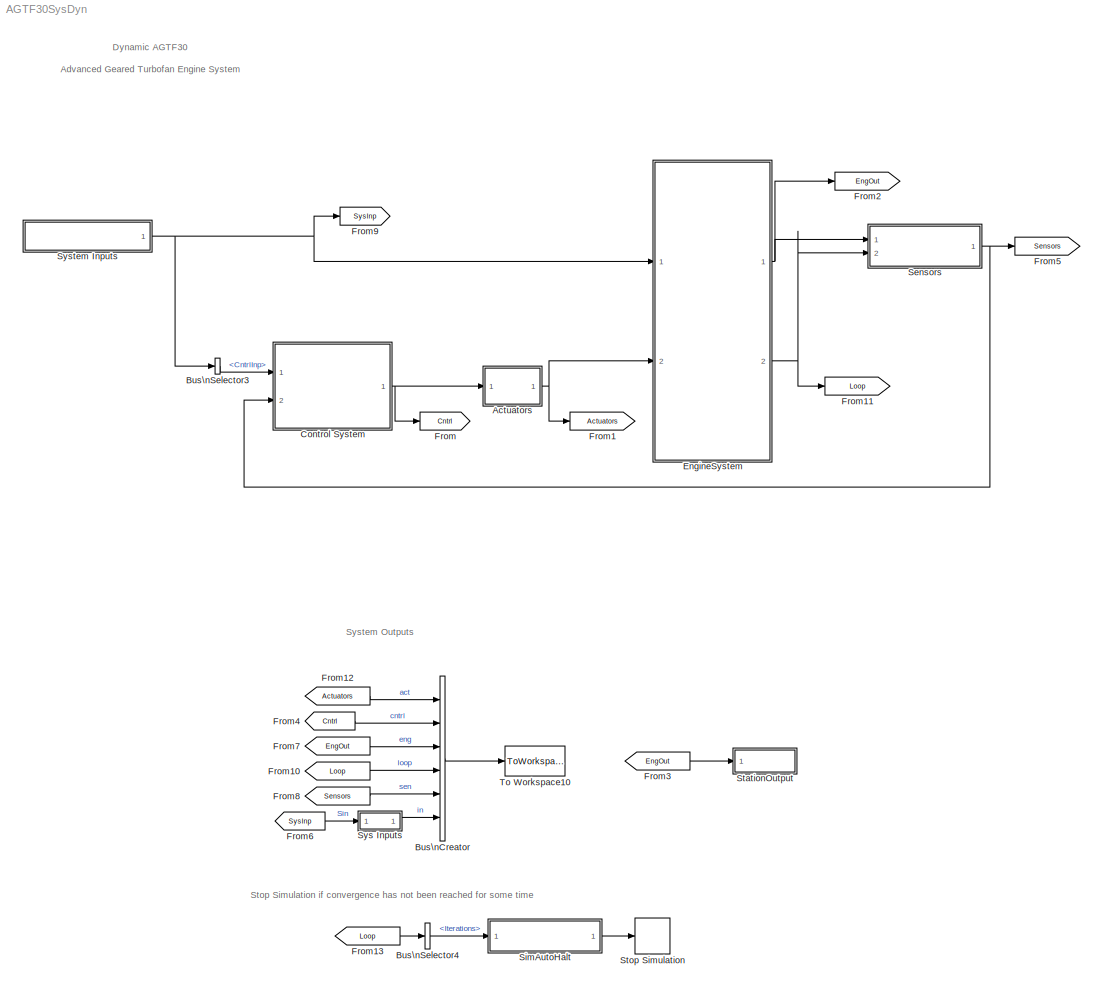
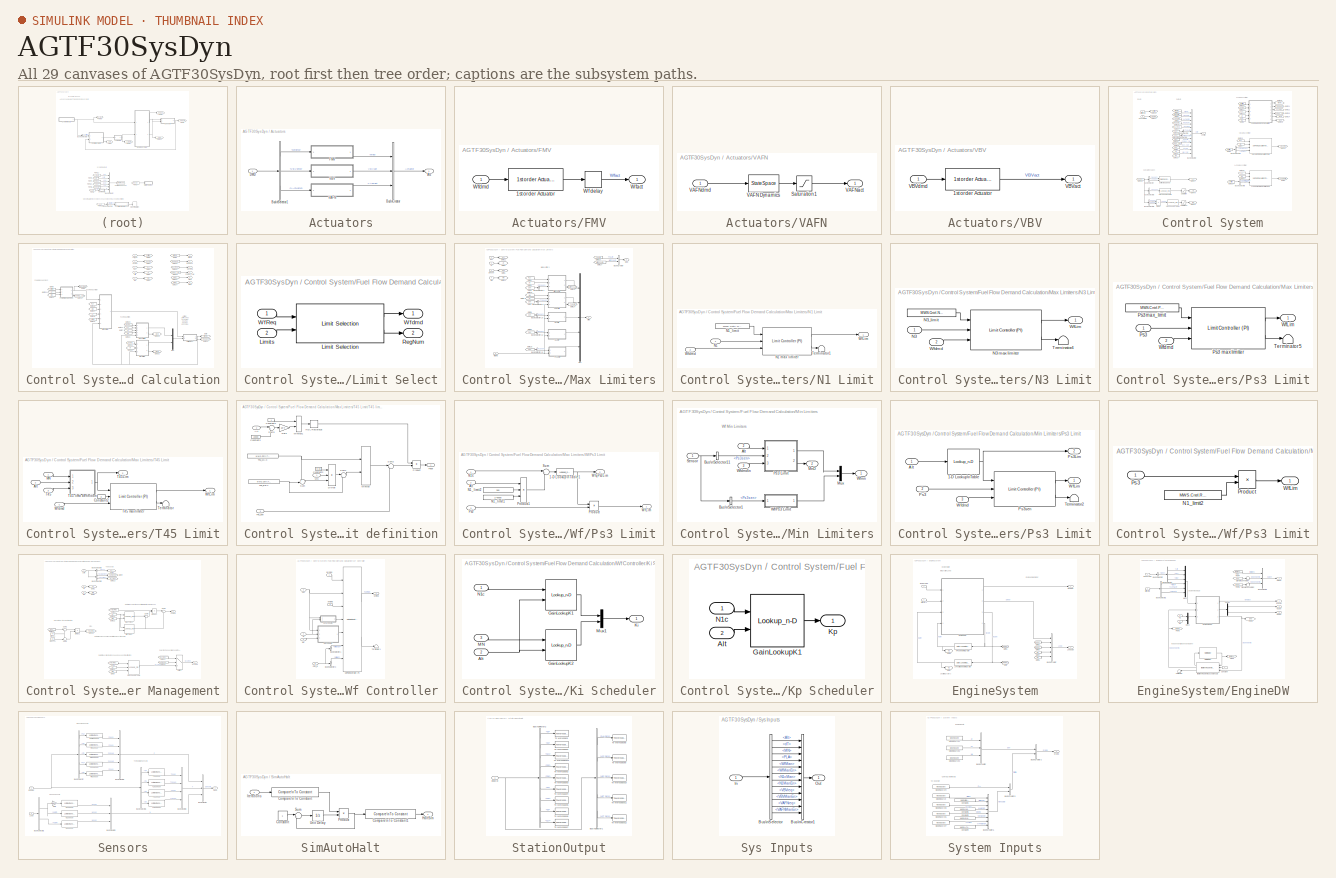
[diagram: thumbnail index - all 29 canvases of the model, root first then tree order]
MODEL AGTF30SysDyn
KIND model
WORKSPACE source: external: MAT-File  (data not in archive)
BLOCK [SubSystem] Actuators
  Ports = [1, 1]
  RequestExecContextInheritance = off
  SID = 208
BLOCK [Outport] Actuators/Act
  IconDisplay = Port number
  SID = 210
BLOCK [BusCreator] Actuators/Bus\nCreator
  DisplayOption = bar
  Inputs = 3
  Ports = [3, 1]
  SID = 207
BLOCK [BusSelector] Actuators/Bus\nSelector1
  OutputSignals = Wfdmd,VBVdmd,VAFNdmd
  Ports = [1, 3]
  SID = 206
BLOCK [Inport] Actuators/DMD
  IconDisplay = Port number
  SID = 209
BLOCK [SubSystem] Actuators/FMV
  Ports = [1, 1]
  RequestExecContextInheritance = off
  SID = 833
BLOCK [Reference] Actuators/FMV/1st order Actuator  REF=Lib_Cntrl_FirstOrderActuator_TMATS/1st order Actuator
  Gain_M = MWS.Act.FMV.Gain
  IC_M = MWS.In.WfIC
  MaxSat_M = MWS.Act.FMV.max
  MinSat_M = MWS.Act.FMV.min
  Ports = [1, 1]
  SID = 836
  SourceBlock = Lib_Cntrl_FirstOrderActuator_TMATS/1st order Actuator
  SourceType = T-MATS: 1st Order Actuator Library Block
  Tau_M = MWS.Act.FMV.Tau
  deadband_M = 0.0
  rateLimit_M = MWS.Act.FMV.rateLimit
BLOCK [TransportDelay] Actuators/FMV/Wf delay
  DelayTime = MWS.Act.FMV.TWf_dly
  InitialOutput = MWS.In.WfIC
  Ports = [1, 1]
  SID = 821
BLOCK [Outport] Actuators/FMV/Wfact
  IconDisplay = Port number
  SID = 835
BLOCK [Inport] Actuators/FMV/Wfdmd
  IconDisplay = Port number
  SID = 834
BLOCK [SubSystem] Actuators/VAFN
  Ports = [1, 1]
  RequestExecContextInheritance = off
  SID = 842
BLOCK [Saturate] Actuators/VAFN/Saturation1
  InputPortMap = u0
  LinearizeAsGain = off
  LowerLimit = 0
  Ports = [1, 1]
  SID = 849
  UpperLimit = MWS.Act.VAFN_max
BLOCK [StateSpace] Actuators/VAFN/VAFN Dynamics
  A = MWS.Act.VAFN.A
  B = MWS.Act.VAFN.B
  C = MWS.Act.VAFN.C
  D = MWS.Act.VAFN.D
  Ports = [1, 1]
  SID = 847
  X0 = MWS.In.VAFNIC
BLOCK [Outport] Actuators/VAFN/VAFNact
  IconDisplay = Port number
  SID = 846
BLOCK [Inport] Actuators/VAFN/VAFNdmd
  IconDisplay = Port number
  SID = 843
BLOCK [SubSystem] Actuators/VBV
  Ports = [1, 1]
  RequestExecContextInheritance = off
  SID = 837
BLOCK [Reference] Actuators/VBV/1st order Actuator  REF=Lib_Cntrl_FirstOrderActuator_TMATS/1st order Actuator
  Gain_M = MWS.Act.VBV.Gain
  IC_M = MWS.In.VBVIC
  MaxSat_M = MWS.Act.VBV.max
  MinSat_M = MWS.Act.VBV.min
  Ports = [1, 1]
  SID = 839
  SourceBlock = Lib_Cntrl_FirstOrderActuator_TMATS/1st order Actuator
  SourceType = T-MATS: 1st Order Actuator Library Block
  Tau_M = MWS.Act.VBV.Tau
  deadband_M = 0.0
  rateLimit_M = 100000
BLOCK [Outport] Actuators/VBV/VBVact
  IconDisplay = Port number
  SID = 841
BLOCK [Inport] Actuators/VBV/VBVdmd
  IconDisplay = Port number
  SID = 838
BLOCK [BusCreator] Bus\nCreator
  DisplayOption = bar
  Inputs = 6
  Ports = [6, 1]
  SID = 483
BLOCK [BusSelector] Bus\nSelector3
  OutputSignals = CntrlInp
  Ports = [1, 1]
  SID = 254
BLOCK [BusSelector] Bus\nSelector4
  OutputSignals = Solver.Iterations
  Ports = [1, 1]
  SID = 798
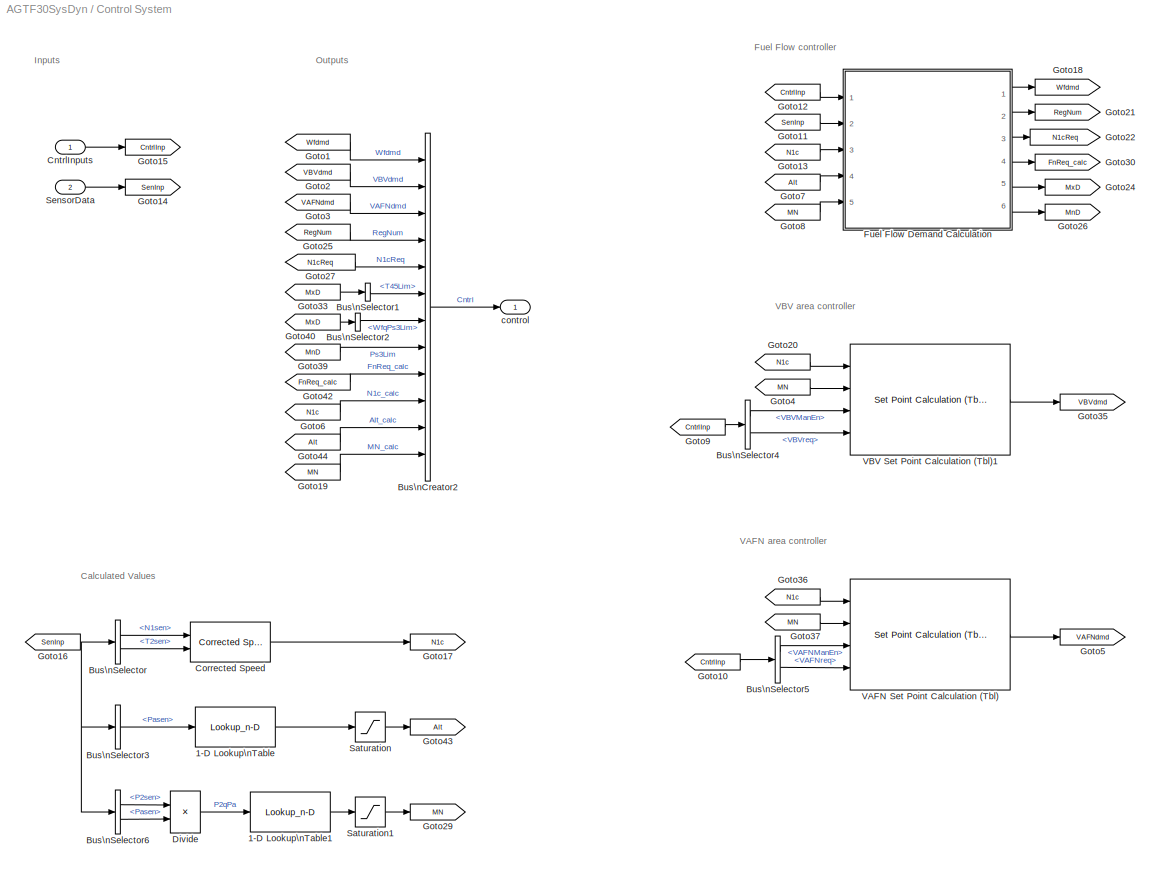
BLOCK [SubSystem] Control System
  Ports = [2, 1]
  RequestExecContextInheritance = off
  SID = 81
BLOCK [Lookup_n-D] Control System/1-D Lookup\nTable
  BreakpointsForDimension1 = MWS.Cntrl.AltCalc_PaVec
  InternalRulePriority = Speed
  NumberOfTableDimensions = 1
  Ports = [1, 1]
  RndMeth = Simplest
  SID = 1108
  Table = MWS.Cntrl.AltCalc_AltVec
BLOCK [Lookup_n-D] Control System/1-D Lookup\nTable1
  BreakpointsForDimension1 = MWS.Cntrl.MNCalc_P2qPa
  InternalRulePriority = Speed
  NumberOfTableDimensions = 1
  Ports = [1, 1]
  RndMeth = Simplest
  SID = 1115
  Table = MWS.Cntrl.MNCalc_MNVec
BLOCK [BusCreator] Control System/Bus\nCreator2
  DisplayOption = bar
  Inputs = 12
  Ports = [12, 1]
  SID = 216
BLOCK [BusSelector] Control System/Bus\nSelector
  OutputSignals = N.N1sen,T.T2sen
  Ports = [1, 2]
  SID = 271
BLOCK [BusSelector] Control System/Bus\nSelector1
  OutputSignals = T45Lim
  Ports = [1, 1]
  SID = 1087
BLOCK [BusSelector] Control System/Bus\nSelector2
  OutputSignals = WfqPs3Lim
  Ports = [1, 1]
  SID = 1089
BLOCK [BusSelector] Control System/Bus\nSelector3
  OutputSignals = P.Pasen
  Ports = [1, 1]
  SID = 1111
BLOCK [BusSelector] Control System/Bus\nSelector4
  OutputSignals = ManualOp.VBVManEn,ManualOp.VBVreq
  Ports = [1, 2]
  SID = 280
BLOCK [BusSelector] Control System/Bus\nSelector5
  OutputSignals = ManualOp.VAFNManEn,ManualOp.VAFNreq
  Ports = [1, 2]
  SID = 618
BLOCK [BusSelector] Control System/Bus\nSelector6
  OutputSignals = P.P2sen,P.Pasen
  Ports = [1, 2]
  SID = 1113
BLOCK [Inport] Control System/CntrlInputs
  IconDisplay = Port number
  SID = 82
BLOCK [Reference] Control System/Corrected Speed  REF=Lib_Cntrl_CorrectedSpeed_TMATS/Corrected Speed
  C_TSTD_M = 518.67
  Ports = [2, 1]
  SID = 426
  SourceBlock = Lib_Cntrl_CorrectedSpeed_TMATS/Corrected Speed
  SourceType = T-MATS: Corrected Speed Library Block
BLOCK [Product] Control System/Divide
  InputSameDT = off
  Inputs = */
  OutDataTypeStr = Inherit: Inherit via internal rule
  Ports = [2, 1]
  RndMeth = Floor
  SID = 1114
  SaturateOnIntegerOverflow = off
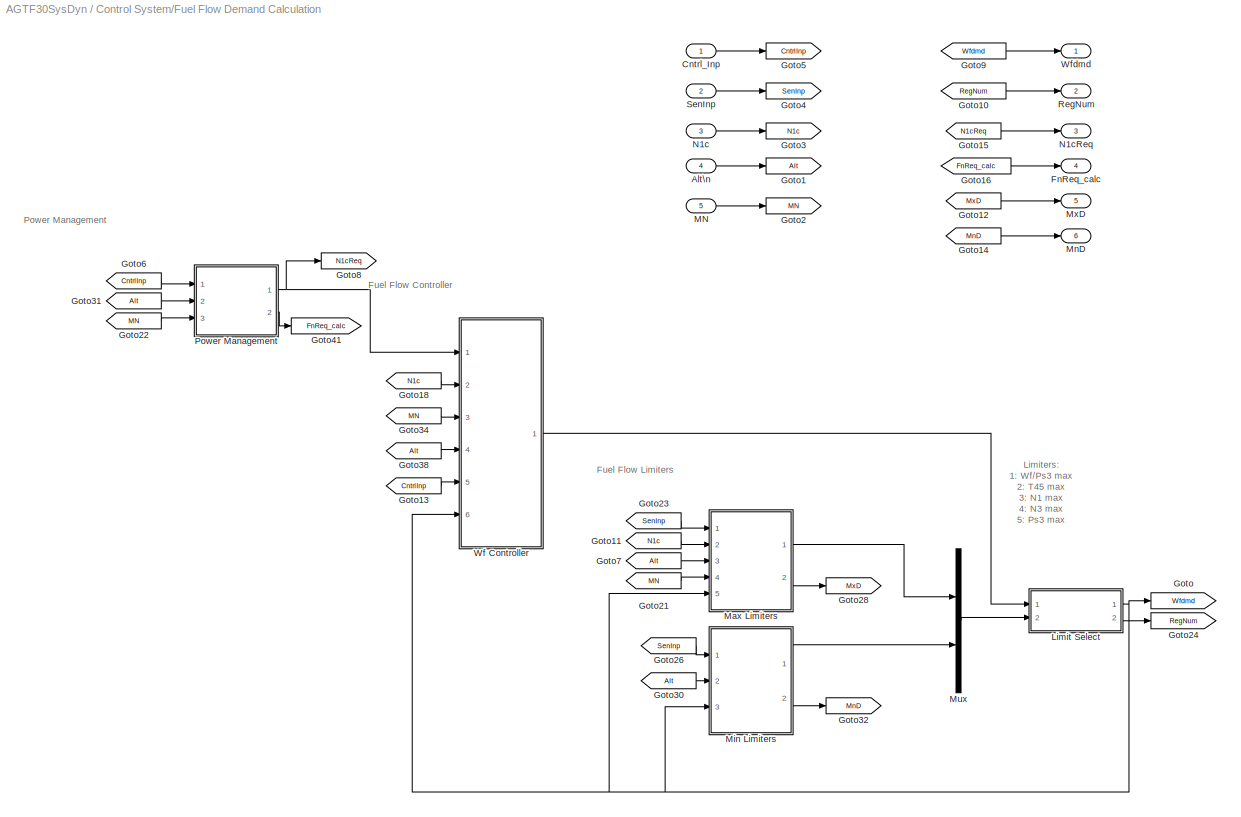
BLOCK [SubSystem] Control System/Fuel Flow Demand Calculation
  Ports = [5, 6]
  RequestExecContextInheritance = off
  SID = 1132
BLOCK [Inport] Control System/Fuel Flow Demand Calculation/Alt\n
  IconDisplay = Port number
  Port = 4
  SID = 1135
BLOCK [Inport] Control System/Fuel Flow Demand Calculation/Cntrl_Inp
  IconDisplay = Port number
  SID = 1133
BLOCK [Outport] Control System/Fuel Flow Demand Calculation/FnReq_calc
  IconDisplay = Port number
  Port = 4
  SID = 1169
BLOCK [Goto] Control System/Fuel Flow Demand Calculation/Goto
  GotoTag = Wfdmd
  SID = 195
BLOCK [Goto] Control System/Fuel Flow Demand Calculation/Goto1
  GotoTag = Alt
  SID = 1137
BLOCK [From] Control System/Fuel Flow Demand Calculation/Goto10
  GotoTag = RegNum
  SID = 1157
BLOCK [From] Control System/Fuel Flow Demand Calculation/Goto11
  GotoTag = N1c
  SID = 790
BLOCK [From] Control System/Fuel Flow Demand Calculation/Goto12
  GotoTag = MxD
  SID = 1156
BLOCK [From] Control System/Fuel Flow Demand Calculation/Goto13
  GotoTag = CntrlInp
  SID = 286
BLOCK [From] Control System/Fuel Flow Demand Calculation/Goto14
  GotoTag = MnD
  SID = 1155
BLOCK [From] Control System/Fuel Flow Demand Calculation/Goto15
  GotoTag = N1cReq
  SID = 1162
BLOCK [From] Control System/Fuel Flow Demand Calculation/Goto16
  GotoTag = FnReq_calc
  SID = 1161
BLOCK [From] Control System/Fuel Flow Demand Calculation/Goto18
  GotoTag = N1c
  SID = 489
BLOCK [Goto] Control System/Fuel Flow Demand Calculation/Goto2
  GotoTag = MN
  SID = 1139
BLOCK [From] Control System/Fuel Flow Demand Calculation/Goto21
  GotoTag = MN
  SID = 717
BLOCK [From] Control System/Fuel Flow Demand Calculation/Goto22
  GotoTag = MN
  SID = 908
BLOCK [From] Control System/Fuel Flow Demand Calculation/Goto23
  GotoTag = SenInp
  SID = 547
BLOCK [Goto] Control System/Fuel Flow Demand Calculation/Goto24
  GotoTag = RegNum
  SID = 549
BLOCK [From] Control System/Fuel Flow Demand Calculation/Goto26
  GotoTag = SenInp
  SID = 554
BLOCK [Goto] Control System/Fuel Flow Demand Calculation/Goto28
  GotoTag = MxD
  SID = 1079
BLOCK [Goto] Control System/Fuel Flow Demand Calculation/Goto3
  GotoTag = N1c
  SID = 1142
BLOCK [From] Control System/Fuel Flow Demand Calculation/Goto30
  GotoTag = Alt
  SID = 566
BLOCK [From] Control System/Fuel Flow Demand Calculation/Goto31
  GotoTag = Alt
  SID = 909
BLOCK [Goto] Control System/Fuel Flow Demand Calculation/Goto32
  GotoTag = MnD
  SID = 1082
BLOCK [From] Control System/Fuel Flow Demand Calculation/Goto34
  GotoTag = MN
  SID = 688
BLOCK [From] Control System/Fuel Flow Demand Calculation/Goto38
  GotoTag = Alt
  SID = 689
BLOCK [Goto] Control System/Fuel Flow Demand Calculation/Goto4
  GotoTag = SenInp
  SID = 1143
BLOCK [Goto] Control System/Fuel Flow Demand Calculation/Goto41
  GotoTag = FnReq_calc
  SID = 1095
BLOCK [Goto] Control System/Fuel Flow Demand Calculation/Goto5
  GotoTag = CntrlInp
  SID = 1148
BLOCK [From] Control System/Fuel Flow Demand Calculation/Goto6
  GotoTag = CntrlInp
  SID = 1146
BLOCK [From] Control System/Fuel Flow Demand Calculation/Goto7
  GotoTag = Alt
  SID = 858
BLOCK [Goto] Control System/Fuel Flow Demand Calculation/Goto8
  GotoTag = N1cReq
  SID = 1064
BLOCK [From] Control System/Fuel Flow Demand Calculation/Goto9
  GotoTag = Wfdmd
  SID = 1160
BLOCK [SubSystem] Control System/Fuel Flow Demand Calculation/Limit Select
  Ports = [2, 2]
  RequestExecContextInheritance = off
  SID = 742
BLOCK [Reference] Control System/Fuel Flow Demand Calculation/Limit Select/Limit Selection  REF=Lib_Cntrl_LimitSelect_TMATS/Limit Selection
  LimitsEn_M = MWS.Cntrl.Limit_En
  Ports = [2, 2]
  SID = 494
  SelectVec_M = MWS.Cntrl.Limit_Types
  SourceBlock = Lib_Cntrl_LimitSelect_TMATS/Limit Selection
  SourceType = T-MATS: Limit Selector
BLOCK [Inport] Control System/Fuel Flow Demand Calculation/Limit Select/Limits
  IconDisplay = Port number
  Port = 2
  SID = 744
BLOCK [Outport] Control System/Fuel Flow Demand Calculation/Limit Select/RegNum
  IconDisplay = Port number
  Port = 2
  SID = 746
BLOCK [Inport] Control System/Fuel Flow Demand Calculation/Limit Select/WfReq
  IconDisplay = Port number
  SID = 743
BLOCK [Outport] Control System/Fuel Flow Demand Calculation/Limit Select/Wfdmd
  IconDisplay = Port number
  SID = 745
BLOCK [Inport] Control System/Fuel Flow Demand Calculation/MN
  IconDisplay = Port number
  Port = 5
  SID = 1138
BLOCK [SubSystem] Control System/Fuel Flow Demand Calculation/Max Limiters
  Ports = [5, 2]
  RequestExecContextInheritance = off
  SID = 711
BLOCK [Inport] Control System/Fuel Flow Demand Calculation/Max Limiters/Alt
  IconDisplay = Port number
  Port = 3
  SID = 860
BLOCK [BusCreator] Control System/Fuel Flow Demand Calculation/Max Limiters/Bus\nCreator
  DisplayOption = bar
  Inputs = 2
  Ports = [2, 1]
  SID = 1077
BLOCK [BusSelector] Control System/Fuel Flow Demand Calculation/Max Limiters/Bus\nSelector1
  OutputSignals = P.Ps3sen
  Ports = [1, 1]
  SID = 809
BLOCK [BusSelector] Control System/Fuel Flow Demand Calculation/Max Limiters/Bus\nSelector10
  OutputSignals = N.N1sen
  Ports = [1, 1]
  SID = 548
BLOCK [BusSelector] Control System/Fuel Flow Demand Calculation/Max Limiters/Bus\nSelector12
  OutputSignals = N.N3sen
  Ports = [1, 1]
  SID = 709
BLOCK [BusSelector] Control System/Fuel Flow Demand Calculation/Max Limiters/Bus\nSelector13
  OutputSignals = P.Ps3sen
  Ports = [1, 1]
  SID = 710
BLOCK [BusSelector] Control System/Fuel Flow Demand Calculation/Max Limiters/Bus\nSelector9
  OutputSignals = T.T45sen
  Ports = [1, 1]
  SID = 522
BLOCK [Goto] Control System/Fuel Flow Demand Calculation/Max Limiters/Goto1
  GotoTag = Sen
  SID = 1038
BLOCK [From] Control System/Fuel Flow Demand Calculation/Max Limiters/Goto10
  GotoTag = Sen
  SID = 1045
BLOCK [Goto] Control System/Fuel Flow Demand Calculation/Max Limiters/Goto11
  GotoTag = MN
  SID = 1047
BLOCK [From] Control System/Fuel Flow Demand Calculation/Max Limiters/Goto12
  GotoTag = MN
  SID = 1049
BLOCK [Goto] Control System/Fuel Flow Demand Calculation/Max Limiters/Goto13
  GotoTag = WfqPs3Lim
  SID = 1070
BLOCK [Goto] Control System/Fuel Flow Demand Calculation/Max Limiters/Goto14
  GotoTag = T45Lim
  SID = 1071
BLOCK [From] Control System/Fuel Flow Demand Calculation/Max Limiters/Goto15
  GotoTag = T45Lim
  SID = 1074
BLOCK [From] Control System/Fuel Flow Demand Calculation/Max Limiters/Goto17
  GotoTag = WfqPs3Lim
  SID = 1093
BLOCK [From] Control System/Fuel Flow Demand Calculation/Max Limiters/Goto2
  GotoTag = N1c
  SID = 856
BLOCK [Goto] Control System/Fuel Flow Demand Calculation/Max Limiters/Goto21
  GotoTag = N1c
  SID = 792
BLOCK [Goto] Control System/Fuel Flow Demand Calculation/Max Limiters/Goto3
  GotoTag = Alt
  SID = 882
BLOCK [From] Control System/Fuel Flow Demand Calculation/Max Limiters/Goto4
  GotoTag = Alt
  SID = 884
BLOCK [From] Control System/Fuel Flow Demand Calculation/Max Limiters/Goto5
  GotoTag = Alt
  SID = 886
BLOCK [From] Control System/Fuel Flow Demand Calculation/Max Limiters/Goto6
  GotoTag = Sen
  SID = 1040
BLOCK [From] Control System/Fuel Flow Demand Calculation/Max Limiters/Goto7
  GotoTag = Sen
  SID = 1041
BLOCK [From] Control System/Fuel Flow Demand Calculation/Max Limiters/Goto8
  GotoTag = Sen
  SID = 1042
BLOCK [From] Control System/Fuel Flow Demand Calculation/Max Limiters/Goto9
  GotoTag = Sen
  SID = 1043
BLOCK [Inport] Control System/Fuel Flow Demand Calculation/Max Limiters/MN
  IconDisplay = Port number
  Port = 4
  SID = 1046
BLOCK [Mux] Control System/Fuel Flow Demand Calculation/Max Limiters/Mux
  DisplayOption = bar
  Inputs = 5
  Ports = [5, 1]
  SID = 544
BLOCK [Outport] Control System/Fuel Flow Demand Calculation/Max Limiters/MxD
  IconDisplay = Port number
  Port = 2
  SID = 1076
BLOCK [SubSystem] Control System/Fuel Flow Demand Calculation/Max Limiters/N1 Limit
  Ports = [2, 1]
  RequestExecContextInheritance = off
  SID = 1025
BLOCK [Inport] Control System/Fuel Flow Demand Calculation/Max Limiters/N1 Limit/N1
  IconDisplay = Port number
  SID = 1026
BLOCK [Reference] Control System/Fuel Flow Demand Calculation/Max Limiters/N1 Limit/N1 max limiter  REF=Lib_Cntrl_LimitCntrlPI_TMATS/Limit Controller (PI)
  Ki_M = MWS.Cntrl.N1mx_Ki
  Kp_M = MWS.Cntrl.N1mx_Kp
  PI_IC_M = MWS.In.WfIC
  Ports = [3, 2]
  SID = 529
  SourceBlock = Lib_Cntrl_LimitCntrlPI_TMATS/Limit Controller (PI)
  SourceType = T-MATS: Limit Controller (PI)
  Ts_M = MWS.In.Ts
  WGain_M = 2000
BLOCK [Constant] Control System/Fuel Flow Demand Calculation/Max Limiters/N1 Limit/N1_limit
  SID = 546
  Value = MWS.Cntrl.N1_MAX
BLOCK [Terminator] Control System/Fuel Flow Demand Calculation/Max Limiters/N1 Limit/Terminator1
  SID = 545
BLOCK [Outport] Control System/Fuel Flow Demand Calculation/Max Limiters/N1 Limit/WfLim
  IconDisplay = Port number
  SID = 1028
BLOCK [Inport] Control System/Fuel Flow Demand Calculation/Max Limiters/N1 Limit/Wfdmd
  IconDisplay = Port number
  Port = 2
  SID = 1027
BLOCK [Inport] Control System/Fuel Flow Demand Calculation/Max Limiters/N1c
  IconDisplay = Port number
  Port = 2
  SID = 789
BLOCK [SubSystem] Control System/Fuel Flow Demand Calculation/Max Limiters/N3 Limit
  Ports = [2, 1]
  RequestExecContextInheritance = off
  SID = 1033
BLOCK [Inport] Control System/Fuel Flow Demand Calculation/Max Limiters/N3 Limit/N3
  IconDisplay = Port number
  SID = 1034
BLOCK [Reference] Control System/Fuel Flow Demand Calculation/Max Limiters/N3 Limit/N3 max limiter  REF=Lib_Cntrl_LimitCntrlPI_TMATS/Limit Controller (PI)
  Ki_M = MWS.Cntrl.N3mx_Ki
  Kp_M = MWS.Cntrl.N3mx_Kp
  PI_IC_M = MWS.In.WfIC
  Ports = [3, 2]
  SID = 704
  SourceBlock = Lib_Cntrl_LimitCntrlPI_TMATS/Limit Controller (PI)
  SourceType = T-MATS: Limit Controller (PI)
  Ts_M = MWS.In.Ts
  WGain_M = 2000
BLOCK [Constant] Control System/Fuel Flow Demand Calculation/Max Limiters/N3 Limit/N3_limit
  SID = 703
  Value = MWS.Cntrl.N3_MAX
BLOCK [Terminator] Control System/Fuel Flow Demand Calculation/Max Limiters/N3 Limit/Terminator4
  SID = 705
BLOCK [Outport] Control System/Fuel Flow Demand Calculation/Max Limiters/N3 Limit/WfLim
  IconDisplay = Port number
  SID = 1036
BLOCK [Inport] Control System/Fuel Flow Demand Calculation/Max Limiters/N3 Limit/Wfdmd
  IconDisplay = Port number
  Port = 2
  SID = 1035
BLOCK [SubSystem] Control System/Fuel Flow Demand Calculation/Max Limiters/Ps3 Limit
  Ports = [2, 1]
  RequestExecContextInheritance = off
  SID = 1029
BLOCK [Inport] Control System/Fuel Flow Demand Calculation/Max Limiters/Ps3 Limit/Ps3
  IconDisplay = Port number
  SID = 1031
BLOCK [Reference] Control System/Fuel Flow Demand Calculation/Max Limiters/Ps3 Limit/Ps3 max limiter  REF=Lib_Cntrl_LimitCntrlPI_TMATS/Limit Controller (PI)
  Ki_M = MWS.Cntrl.Ps3mx_Ki
  Kp_M = MWS.Cntrl.Ps3mx_Kp
  PI_IC_M = MWS.In.WfIC
  Ports = [3, 2]
  SID = 706
  SourceBlock = Lib_Cntrl_LimitCntrlPI_TMATS/Limit Controller (PI)
  SourceType = T-MATS: Limit Controller (PI)
  Ts_M = MWS.In.Ts
  WGain_M = 2000
BLOCK [Constant] Control System/Fuel Flow Demand Calculation/Max Limiters/Ps3 Limit/Ps3max_limit
  SID = 708
  Value = MWS.Cntrl.Ps3_MAX
BLOCK [Terminator] Control System/Fuel Flow Demand Calculation/Max Limiters/Ps3 Limit/Terminator5
  SID = 707
BLOCK [Outport] Control System/Fuel Flow Demand Calculation/Max Limiters/Ps3 Limit/WfLim
  IconDisplay = Port number
  SID = 1032
BLOCK [Inport] Control System/Fuel Flow Demand Calculation/Max Limiters/Ps3 Limit/Wfdmd
  IconDisplay = Port number
  Port = 2
  SID = 1037
BLOCK [Inport] Control System/Fuel Flow Demand Calculation/Max Limiters/Sensor
  IconDisplay = Port number
  SID = 712
BLOCK [SubSystem] Control System/Fuel Flow Demand Calculation/Max Limiters/T45 Limit
  Ports = [4, 2]
  RequestExecContextInheritance = off
  SID = 1018
BLOCK [Inport] Control System/Fuel Flow Demand Calculation/Max Limiters/T45 Limit/Alt
  IconDisplay = Port number
  Port = 2
  SID = 1020
BLOCK [Constant] Control System/Fuel Flow Demand Calculation/Max Limiters/T45 Limit/Constant2
  SID = 887
  Value = 0
BLOCK [Inport] Control System/Fuel Flow Demand Calculation/Max Limiters/T45 Limit/MN
  IconDisplay = Port number
  SID = 1019
BLOCK [Inport] Control System/Fuel Flow Demand Calculation/Max Limiters/T45 Limit/T45
  IconDisplay = Port number
  Port = 3
  SID = 1021
BLOCK [SubSystem] Control System/Fuel Flow Demand Calculation/Max Limiters/T45 Limit/T45 limit definition
  Ports = [3, 1]
  RequestExecContextInheritance = off
  SID = 510
BLOCK [Inport] Control System/Fuel Flow Demand Calculation/Max Limiters/T45 Limit/T45 limit definition/Alt
  IconDisplay = Port number
  Port = 2
  SID = 877
BLOCK [Constant] Control System/Fuel Flow Demand Calculation/Max Limiters/T45 Limit/T45 limit definition/Constant1
  SID = 890
BLOCK [Constant] Control System/Fuel Flow Demand Calculation/Max Limiters/T45 Limit/T45 limit definition/Constant2
  SID = 512
  Value = 0.25
BLOCK [Constant] Control System/Fuel Flow Demand Calculation/Max Limiters/T45 Limit/T45 limit definition/Constant3
  SID = 891
  Value = 10000
BLOCK [Product] Control System/Fuel Flow Demand Calculation/Max Limiters/T45 Limit/T45 limit definition/Divide
  InputSameDT = off
  Inputs = /**
  OutDataTypeStr = Inherit: Inherit via internal rule
  Ports = [3, 1]
  RndMeth = Floor
  SID = 514
  SaturateOnIntegerOverflow = off
BLOCK [Gain] Control System/Fuel Flow Demand Calculation/Max Limiters/T45 Limit/T45 limit definition/Gain
  Gain = 1e-4
  OutDataTypeStr = Inherit: Inherit via internal rule
  ParamDataTypeStr = Inherit: Inherit via internal rule
  SID = 892
  SaturateOnIntegerOverflow = off
BLOCK [Reciprocal] Control System/Fuel Flow Demand Calculation/Max Limiters/T45 Limit/T45 limit definition/HDL Reciprocal
  SID = 893
BLOCK [Inport] Control System/Fuel Flow Demand Calculation/Max Limiters/T45 Limit/T45 limit definition/MN
  IconDisplay = Port number
  SID = 511
BLOCK [MinMax] Control System/Fuel Flow Demand Calculation/Max Limiters/T45 Limit/T45 limit definition/MinMax
  InputSameDT = off
  Inputs = 2
  Ports = [2, 1]
  SID = 515
  SaturateOnIntegerOverflow = off
BLOCK [MinMax] Control System/Fuel Flow Demand Calculation/Max Limiters/T45 Limit/T45 limit definition/MinMax1
  Function = max
  InputSameDT = off
  Inputs = 2
  Ports = [2, 1]
  SID = 888
  SaturateOnIntegerOverflow = off
BLOCK [Product] Control System/Fuel Flow Demand Calculation/Max Limiters/T45 Limit/T45 limit definition/Product
  InputSameDT = off
  OutDataTypeStr = Inherit: Inherit via internal rule
  Ports = [2, 1]
  RndMeth = Floor
  SID = 876
  SaturateOnIntegerOverflow = off
BLOCK [Sum] Control System/Fuel Flow Demand Calculation/Max Limiters/T45 Limit/T45 limit definition/Sum
  IconShape = round
  InputSameDT = off
  Inputs = +-|
  OutDataTypeStr = Inherit: Inherit via internal rule
  Ports = [2, 1]
  SID = 516
  SaturateOnIntegerOverflow = off
BLOCK [Sum] Control System/Fuel Flow Demand Calculation/Max Limiters/T45 Limit/T45 limit definition/Sum1
  IconShape = round
  InputSameDT = off
  Inputs = |++
  OutDataTypeStr = Inherit: Inherit via internal rule
  Ports = [2, 1]
  SID = 517
  SaturateOnIntegerOverflow = off
BLOCK [Sum] Control System/Fuel Flow Demand Calculation/Max Limiters/T45 Limit/T45 limit definition/Sum2
  IconShape = round
  InputSameDT = off
  Inputs = |+-
  OutDataTypeStr = Inherit: Inherit via internal rule
  Ports = [2, 1]
  SID = 869
  SaturateOnIntegerOverflow = off
BLOCK [Sum] Control System/Fuel Flow Demand Calculation/Max Limiters/T45 Limit/T45 limit definition/Sum3
  IconShape = round
  InputSameDT = off
  Inputs = |+-
  OutDataTypeStr = Inherit: Inherit via internal rule
  Ports = [2, 1]
  SID = 889
  SaturateOnIntegerOverflow = off
BLOCK [Constant] Control System/Fuel Flow Demand Calculation/Max Limiters/T45 Limit/T45 limit definition/T45_BET
  SID = 701
  Value = MWS.Cntrl.T45_BET
BLOCK [Constant] Control System/Fuel Flow Demand Calculation/Max Limiters/T45 Limit/T45 limit definition/T45_MAX
  SID = 702
  Value = MWS.Cntrl.T45_MAX
BLOCK [Inport] Control System/Fuel Flow Demand Calculation/Max Limiters/T45 Limit/T45 limit definition/T45_sen
  IconDisplay = Port number
  Port = 3
  SID = 871
BLOCK [Outport] Control System/Fuel Flow Demand Calculation/Max Limiters/T45 Limit/T45 limit definition/T45er
  IconDisplay = Port number
  SID = 520
BLOCK [Reference] Control System/Fuel Flow Demand Calculation/Max Limiters/T45 Limit/T45 max limiter  REF=Lib_Cntrl_LimitCntrlPI_TMATS/Limit Controller (PI)
  Ki_M = MWS.Cntrl.T45mx_Ki
  Kp_M = MWS.Cntrl.T45mx_Kp
  PI_IC_M = MWS.In.WfIC
  Ports = [3, 2]
  SID = 493
  SourceBlock = Lib_Cntrl_LimitCntrlPI_TMATS/Limit Controller (PI)
  SourceType = T-MATS: Limit Controller (PI)
  Ts_M = MWS.In.Ts
  WGain_M = 2000
BLOCK [Outport] Control System/Fuel Flow Demand Calculation/Max Limiters/T45 Limit/T45Lim
  IconDisplay = Port number
  Port = 2
  SID = 1067
BLOCK [Terminator] Control System/Fuel Flow Demand Calculation/Max Limiters/T45 Limit/Terminator
  SID = 496
BLOCK [Outport] Control System/Fuel Flow Demand Calculation/Max Limiters/T45 Limit/WfLim
  IconDisplay = Port number
  SID = 1023
BLOCK [Inport] Control System/Fuel Flow Demand Calculation/Max Limiters/T45 Limit/Wfdmd
  IconDisplay = Port number
  Port = 4
  SID = 1024
BLOCK [SubSystem] Control System/Fuel Flow Demand Calculation/Max Limiters/Wf//Ps3 Limit
  Ports = [3, 2]
  RequestExecContextInheritance = off
  SID = 1013
BLOCK [Lookup_n-D] Control System/Fuel Flow Demand Calculation/Max Limiters/Wf//Ps3 Limit/1-D Lookup\nTable1
  BreakpointsForDimension1 = MWS.Cntrl.RU_Nc
  InternalRulePriority = Speed
  NumberOfTableDimensions = 1
  Ports = [1, 1]
  RndMeth = Simplest
  SID = 853
  Table = MWS.Cntrl.RUmx
BLOCK [Inport] Control System/Fuel Flow Demand Calculation/Max Limiters/Wf//Ps3 Limit/Alt
  IconDisplay = Port number
  Port = 2
  SID = 1015
BLOCK [Constant] Control System/Fuel Flow Demand Calculation/Max Limiters/Wf//Ps3 Limit/N1_limit1
  SID = 863
  Value = 1/40000
BLOCK [Constant] Control System/Fuel Flow Demand Calculation/Max Limiters/Wf//Ps3 Limit/N1_limit2
  SID = 864
  Value = 300
BLOCK [Inport] Control System/Fuel Flow Demand Calculation/Max Limiters/Wf//Ps3 Limit/N1c
  IconDisplay = Port number
  SID = 1014
BLOCK [Product] Control System/Fuel Flow Demand Calculation/Max Limiters/Wf//Ps3 Limit/Product
  InputSameDT = off
  OutDataTypeStr = Inherit: Inherit via internal rule
  Ports = [2, 1]
  RndMeth = Floor
  SID = 810
  SaturateOnIntegerOverflow = off
BLOCK [Product] Control System/Fuel Flow Demand Calculation/Max Limiters/Wf//Ps3 Limit/Product1
  InputSameDT = off
  Inputs = 3
  OutDataTypeStr = Inherit: Inherit via internal rule
  Ports = [3, 1]
  RndMeth = Floor
  SID = 862
  SaturateOnIntegerOverflow = off
BLOCK [Inport] Control System/Fuel Flow Demand Calculation/Max Limiters/Wf//Ps3 Limit/Ps3
  IconDisplay = Port number
  Port = 3
  SID = 1016
BLOCK [Sum] Control System/Fuel Flow Demand Calculation/Max Limiters/Wf//Ps3 Limit/Sum
  IconShape = round
  InputSameDT = off
  Inputs = |+-
  OutDataTypeStr = Inherit: Inherit via internal rule
  Ports = [2, 1]
  SID = 859
  SaturateOnIntegerOverflow = off
BLOCK [Outport] Control System/Fuel Flow Demand Calculation/Max Limiters/Wf//Ps3 Limit/WfLim
  IconDisplay = Port number
  SID = 1017
BLOCK [Outport] Control System/Fuel Flow Demand Calculation/Max Limiters/Wf//Ps3 Limit/WfqPs3Lim
  IconDisplay = Port number
  Port = 2
  SID = 1068
BLOCK [Inport] Control System/Fuel Flow Demand Calculation/Max Limiters/Wfdmd
  IconDisplay = Port number
  Port = 5
  SID = 715
BLOCK [Outport] Control System/Fuel Flow Demand Calculation/Max Limiters/Wfmx
  IconDisplay = Port number
  SID = 714
BLOCK [SubSystem] Control System/Fuel Flow Demand Calculation/Min Limiters
  Ports = [3, 2]
  RequestExecContextInheritance = off
  SID = 735
BLOCK [Inport] Control System/Fuel Flow Demand Calculation/Min Limiters/Alt
  IconDisplay = Port number
  Port = 2
  SID = 736
BLOCK [BusSelector] Control System/Fuel Flow Demand Calculation/Min Limiters/Bus\nSelector1
  OutputSignals = P.Ps3sen
  Ports = [1, 1]
  SID = 896
BLOCK [BusSelector] Control System/Fuel Flow Demand Calculation/Min Limiters/Bus\nSelector11
  OutputSignals = P.Ps3sen
  Ports = [1, 1]
  SID = 555
BLOCK [Outport] Control System/Fuel Flow Demand Calculation/Min Limiters/MnD
  IconDisplay = Port number
  Port = 2
  SID = 1081
BLOCK [Mux] Control System/Fuel Flow Demand Calculation/Min Limiters/Mux
  DisplayOption = bar
  Inputs = 2
  Ports = [2, 1]
  SID = 895
BLOCK [SubSystem] Control System/Fuel Flow Demand Calculation/Min Limiters/Ps3 Limit
  Ports = [3, 2]
  RequestExecContextInheritance = off
  SID = 1053
BLOCK [Lookup_n-D] Control System/Fuel Flow Demand Calculation/Min Limiters/Ps3 Limit/1-D Lookup\nTable
  BreakpointsForDimension1 = MWS.Cntrl.Ps3mn_AltVec
  InternalRulePriority = Speed
  NumberOfTableDimensions = 1
  Ports = [1, 1]
  RndMeth = Simplest
  SID = 904
  Table = MWS.Cntrl.Ps3mn_Ps3Lim
BLOCK [Inport] Control System/Fuel Flow Demand Calculation/Min Limiters/Ps3 Limit/Alt
  IconDisplay = Port number
  SID = 1054
BLOCK [Inport] Control System/Fuel Flow Demand Calculation/Min Limiters/Ps3 Limit/Ps3
  IconDisplay = Port number
  Port = 2
  SID = 1055
BLOCK [Outport] Control System/Fuel Flow Demand Calculation/Min Limiters/Ps3 Limit/Ps3Lim
  IconDisplay = Port number
  Port = 2
  SID = 1080
BLOCK [Reference] Control System/Fuel Flow Demand Calculation/Min Limiters/Ps3 Limit/Ps3sen  REF=Lib_Cntrl_LimitCntrlPI_TMATS/Limit Controller (PI)
  Ki_M = MWS.Cntrl.Ps3mn_Ki
  Kp_M = MWS.Cntrl.Ps3mn_Kp
  PI_IC_M = MWS.In.WfIC
  Ports = [3, 2]
  SID = 552
  SourceBlock = Lib_Cntrl_LimitCntrlPI_TMATS/Limit Controller (PI)
  SourceType = T-MATS: Limit Controller (PI)
  Ts_M = MWS.In.Ts
  WGain_M = 2000
BLOCK [Terminator] Control System/Fuel Flow Demand Calculation/Min Limiters/Ps3 Limit/Terminator2
  SID = 556
BLOCK [Outport] Control System/Fuel Flow Demand Calculation/Min Limiters/Ps3 Limit/WfLim
  IconDisplay = Port number
  SID = 1057
BLOCK [Inport] Control System/Fuel Flow Demand Calculation/Min Limiters/Ps3 Limit/Wfdmd
  IconDisplay = Port number
  Port = 3
  SID = 1056
BLOCK [Inport] Control System/Fuel Flow Demand Calculation/Min Limiters/Sensor
  IconDisplay = Port number
  SID = 738
BLOCK [SubSystem] Control System/Fuel Flow Demand Calculation/Min Limiters/Wf//Ps3 Limit
  Ports = [1, 1]
  RequestExecContextInheritance = off
  SID = 1050
BLOCK [Constant] Control System/Fuel Flow Demand Calculation/Min Limiters/Wf//Ps3 Limit/N1_limit2
  SID = 898
  Value = MWS.Cntrl.RUmn
BLOCK [Product] Control System/Fuel Flow Demand Calculation/Min Limiters/Wf//Ps3 Limit/Product
  InputSameDT = off
  OutDataTypeStr = Inherit: Inherit via internal rule
  Ports = [2, 1]
  RndMeth = Floor
  SID = 899
  SaturateOnIntegerOverflow = off
BLOCK [Inport] Control System/Fuel Flow Demand Calculation/Min Limiters/Wf//Ps3 Limit/Ps3
  IconDisplay = Port number
  SID = 1051
BLOCK [Outport] Control System/Fuel Flow Demand Calculation/Min Limiters/Wf//Ps3 Limit/WfLim
  IconDisplay = Port number
  SID = 1052
BLOCK [Inport] Control System/Fuel Flow Demand Calculation/Min Limiters/Wfdmd\n
  IconDisplay = Port number
  Port = 3
  SID = 897
BLOCK [Outport] Control System/Fuel Flow Demand Calculation/Min Limiters/Wfmn
  IconDisplay = Port number
  SID = 740
BLOCK [Outport] Control System/Fuel Flow Demand Calculation/MnD
  IconDisplay = Port number
  Port = 6
  SID = 1171
BLOCK [Mux] Control System/Fuel Flow Demand Calculation/Mux
  DisplayOption = bar
  Inputs = 2
  Ports = [2, 1]
  SID = 718
BLOCK [Outport] Control System/Fuel Flow Demand Calculation/MxD
  IconDisplay = Port number
  Port = 5
  SID = 1170
BLOCK [Inport] Control System/Fuel Flow Demand Calculation/N1c
  IconDisplay = Port number
  Port = 3
  SID = 1141
BLOCK [Outport] Control System/Fuel Flow Demand Calculation/N1cReq
  IconDisplay = Port number
  Port = 3
  SID = 1168
BLOCK [SubSystem] Control System/Fuel Flow Demand Calculation/Power Management
  Ports = [3, 2]
  RequestExecContextInheritance = off
  SID = 732
BLOCK [Inport] Control System/Fuel Flow Demand Calculation/Power Management/Alt
  IconDisplay = Port number
  Port = 2
  SID = 906
BLOCK [BusSelector] Control System/Fuel Flow Demand Calculation/Power Management/Bus\nSelector2
  OutputSignals = PLA
  Ports = [1, 1]
  SID = 255
BLOCK [BusSelector] Control System/Fuel Flow Demand Calculation/Power Management/Bus\nSelector6
  OutputSignals = ManualOp.N1ManEn,ManualOp.N1cMan
  Ports = [1, 2]
  SID = 345
BLOCK [Inport] Control System/Fuel Flow Demand Calculation/Power Management/Cntrl
  IconDisplay = Port number
  SID = 733
BLOCK [Product] Control System/Fuel Flow Demand Calculation/Power Management/Divide1
  InputSameDT = off
  Inputs = */
  OutDataTypeStr = Inherit: Inherit via internal rule
  Ports = [2, 1]
  RndMeth = Floor
  SID = 954
  SaturateOnIntegerOverflow = off
BLOCK [Outport] Control System/Fuel Flow Demand Calculation/Power Management/FnReq
  IconDisplay = Port number
  Port = 2
  SID = 1094
BLOCK [Goto] Control System/Fuel Flow Demand Calculation/Power Management/Goto1
  GotoTag = MN
  SID = 915
BLOCK [From] Control System/Fuel Flow Demand Calculation/Power Management/Goto11
  GotoTag = Alt
  SID = 991
BLOCK [From] Control System/Fuel Flow Demand Calculation/Power Management/Goto12
  GotoTag = N1cMan
  SID = 1011
BLOCK [Goto] Control System/Fuel Flow Demand Calculation/Power Management/Goto13
  GotoTag = N1cMan
  SID = 945
BLOCK [From] Control System/Fuel Flow Demand Calculation/Power Management/Goto14
  GotoTag = PLA
  SID = 948
BLOCK [Goto] Control System/Fuel Flow Demand Calculation/Power Management/Goto15
  GotoTag = ThrustFrac
  SID = 956
BLOCK [From] Control System/Fuel Flow Demand Calculation/Power Management/Goto17
  GotoTag = ThrustFrac
  SID = 966
BLOCK [From] Control System/Fuel Flow Demand Calculation/Power Management/Goto18
  GotoTag = N1manEn
  SID = 1010
BLOCK [Goto] Control System/Fuel Flow Demand Calculation/Power Management/Goto2
  GotoTag = Alt
  SID = 914
BLOCK [From] Control System/Fuel Flow Demand Calculation/Power Management/Goto22
  GotoTag = MN
  SID = 910
BLOCK [Goto] Control System/Fuel Flow Demand Calculation/Power Management/Goto3
  GotoTag = PLA
  SID = 943
BLOCK [From] Control System/Fuel Flow Demand Calculation/Power Management/Goto31
  GotoTag = Alt
  SID = 911
BLOCK [Goto] Control System/Fuel Flow Demand Calculation/Power Management/Goto4
  GotoTag = N1manEn
  SID = 944
BLOCK [From] Control System/Fuel Flow Demand Calculation/Power Management/Goto8
  GotoTag = ThrustFrac
  SID = 989
BLOCK [From] Control System/Fuel Flow Demand Calculation/Power Management/Goto9
  GotoTag = MN
  SID = 990
BLOCK [Inport] Control System/Fuel Flow Demand Calculation/Power Management/MN
  IconDisplay = Port number
  Port = 3
  SID = 907
BLOCK [Constant] Control System/Fuel Flow Demand Calculation/Power Management/Max PLA
  SID = 951
  Value = 80
BLOCK [Lookup_n-D] Control System/Fuel Flow Demand Calculation/Power Management/Max Thrust
  BreakpointsForDimension1 = MWS.Cntrl.Fn_AltVec
  BreakpointsForDimension2 = MWS.Cntrl.Fn_MNVec
  InternalRulePriority = Speed
  Ports = [2, 1]
  RndMeth = Simplest
  SID = 905
  Table = MWS.Cntrl.Fn_mx
BLOCK [Constant] Control System/Fuel Flow Demand Calculation/Power Management/Min PLA
  SID = 950
  Value = 40
BLOCK [Lookup_n-D] Control System/Fuel Flow Demand Calculation/Power Management/Min Thrust
  BreakpointsForDimension1 = MWS.Cntrl.Fn_AltVec
  BreakpointsForDimension2 = MWS.Cntrl.Fn_MNVec
  InternalRulePriority = Speed
  Ports = [2, 1]
  RndMeth = Simplest
  SID = 918
  Table = MWS.Cntrl.Fn_mn
BLOCK [Outport] Control System/Fuel Flow Demand Calculation/Power Management/Nc1Req
  IconDisplay = Port number
  SID = 734
BLOCK [Product] Control System/Fuel Flow Demand Calculation/Power Management/Product
  InputSameDT = off
  OutDataTypeStr = Inherit: Inherit via internal rule
  Ports = [2, 1]
  RndMeth = Floor
  SID = 973
  SaturateOnIntegerOverflow = off
BLOCK [Sum] Control System/Fuel Flow Demand Calculation/Power Management/Sum2
  IconShape = round
  InputSameDT = off
  Inputs = |+-
  OutDataTypeStr = Inherit: Inherit via internal rule
  Ports = [2, 1]
  SID = 952
  SaturateOnIntegerOverflow = off
BLOCK [Sum] Control System/Fuel Flow Demand Calculation/Power Management/Sum3
  IconShape = round
  InputSameDT = off
  Inputs = -+|
  OutDataTypeStr = Inherit: Inherit via internal rule
  Ports = [2, 1]
  SID = 953
  SaturateOnIntegerOverflow = off
BLOCK [Sum] Control System/Fuel Flow Demand Calculation/Power Management/Sum4
  IconShape = round
  InputSameDT = off
  Inputs = |++
  OutDataTypeStr = Inherit: Inherit via internal rule
  Ports = [2, 1]
  SID = 972
  SaturateOnIntegerOverflow = off
BLOCK [Sum] Control System/Fuel Flow Demand Calculation/Power Management/Sum5
  IconShape = round
  InputSameDT = off
  Inputs = |+-
  OutDataTypeStr = Inherit: Inherit via internal rule
  Ports = [2, 1]
  SID = 971
  SaturateOnIntegerOverflow = off
BLOCK [Switch] Control System/Fuel Flow Demand Calculation/Power Management/Switch
  Criteria = u2 > Threshold
  InputSameDT = off
  SID = 1012
  SaturateOnIntegerOverflow = off
BLOCK [Lookup_n-D] Control System/Fuel Flow Demand Calculation/Power Management/n-D Lookup\nTable
  BreakpointsForDimension1 = MWS.Cntrl.PM_TF
  BreakpointsForDimension2 = MWS.Cntrl.PM_AltVec
  BreakpointsForDimension3 = MWS.Cntrl.PM_MNVec
  InternalRulePriority = Speed
  NumberOfTableDimensions = 3
  Ports = [3, 1]
  RndMeth = Simplest
  SID = 981
  Table = MWS.Cntrl.PM_NcArray
BLOCK [Outport] Control System/Fuel Flow Demand Calculation/RegNum
  IconDisplay = Port number
  Port = 2
  SID = 1167
BLOCK [Inport] Control System/Fuel Flow Demand Calculation/SenInp
  IconDisplay = Port number
  Port = 2
  SID = 1140
BLOCK [SubSystem] Control System/Fuel Flow Demand Calculation/Wf Controller
  Ports = [6, 1]
  RequestExecContextInheritance = off
  SID = 720
BLOCK [Inport] Control System/Fuel Flow Demand Calculation/Wf Controller/Alt
  IconDisplay = Port number
  Port = 4
  SID = 727
BLOCK [BusSelector] Control System/Fuel Flow Demand Calculation/Wf Controller/Bus\nSelector1
  OutputSignals = ManualOp.WfManEn
  Ports = [1, 1]
  SID = 278
BLOCK [BusSelector] Control System/Fuel Flow Demand Calculation/Wf Controller/Bus\nSelector3
  OutputSignals = ManualOp.WfMan
  Ports = [1, 1]
  SID = 279
BLOCK [Inport] Control System/Fuel Flow Demand Calculation/Wf Controller/Cntrl_In
  IconDisplay = Port number
  Port = 5
  SID = 728
BLOCK [SubSystem] Control System/Fuel Flow Demand Calculation/Wf Controller/Ki Scheduler
  Ports = [3, 1]
  RequestExecContextInheritance = off
  SID = 682
BLOCK [Inport] Control System/Fuel Flow Demand Calculation/Wf Controller/Ki Scheduler/Alt
  IconDisplay = Port number
  Port = 2
  SID = 685
BLOCK [Lookup_n-D] Control System/Fuel Flow Demand Calculation/Wf Controller/Ki Scheduler/GainLookupK1
  BreakpointsForDimension1 = MWS.Cntrl.Ki_NcVec
  BreakpointsForDimension2 = MWS.Cntrl.Ki_AltVec
  DiagnosticForOutOfRangeInput = Warning
  InternalRulePriority = Speed
  InterpMethod = Nearest
  Ports = [2, 1]
  RndMeth = Simplest
  SID = 678
  Table = MWS.Cntrl.Ki_sch'
BLOCK [Lookup_n-D] Control System/Fuel Flow Demand Calculation/Wf Controller/Ki Scheduler/GainLookupK2
  BreakpointsForDimension1 = MWS.Cntrl.Ki_MNVecX
  BreakpointsForDimension2 = MWS.Cntrl.Ki_AltVecX
  DiagnosticForOutOfRangeInput = Warning
  InternalRulePriority = Speed
  InterpMethod = Flat
  Ports = [2, 1]
  RndMeth = Simplest
  SID = 679
  Table = MWS.Cntrl.KiX_sch'
BLOCK [Outport] Control System/Fuel Flow Demand Calculation/Wf Controller/Ki Scheduler/Ki
  IconDisplay = Port number
  SID = 686
BLOCK [Inport] Control System/Fuel Flow Demand Calculation/Wf Controller/Ki Scheduler/MN
  IconDisplay = Port number
  Port = 3
  SID = 684
BLOCK [Mux] Control System/Fuel Flow Demand Calculation/Wf Controller/Ki Scheduler/Mux1
  DisplayOption = bar
  Inputs = 2
  Ports = [2, 1]
  SID = 680
BLOCK [Inport] Control System/Fuel Flow Demand Calculation/Wf Controller/Ki Scheduler/N1c
  IconDisplay = Port number
  SID = 683
BLOCK [SubSystem] Control System/Fuel Flow Demand Calculation/Wf Controller/Kp Scheduler
  Ports = [2, 1]
  RequestExecContextInheritance = off
  SID = 695
BLOCK [Inport] Control System/Fuel Flow Demand Calculation/Wf Controller/Kp Scheduler/Alt
  IconDisplay = Port number
  Port = 2
  SID = 697
BLOCK [Lookup_n-D] Control System/Fuel Flow Demand Calculation/Wf Controller/Kp Scheduler/GainLookupK1
  BreakpointsForDimension1 = MWS.Cntrl.Kp_NcVec
  BreakpointsForDimension2 = MWS.Cntrl.Kp_AltVec
  DiagnosticForOutOfRangeInput = Warning
  InternalRulePriority = Speed
  InterpMethod = Nearest
  Ports = [2, 1]
  RndMeth = Simplest
  SID = 694
  Table = MWS.Cntrl.Kp_sch'
BLOCK [Outport] Control System/Fuel Flow Demand Calculation/Wf Controller/Kp Scheduler/Kp
  IconDisplay = Port number
  SID = 698
BLOCK [Inport] Control System/Fuel Flow Demand Calculation/Wf Controller/Kp Scheduler/N1c
  IconDisplay = Port number
  SID = 696
BLOCK [Inport] Control System/Fuel Flow Demand Calculation/Wf Controller/MN
  IconDisplay = Port number
  Port = 3
  SID = 726
BLOCK [Inport] Control System/Fuel Flow Demand Calculation/Wf Controller/N1c
  IconDisplay = Port number
  Port = 2
  SID = 722
BLOCK [Inport] Control System/Fuel Flow Demand Calculation/Wf Controller/Nc1Req
  IconDisplay = Port number
  SID = 721
BLOCK [Reference] Control System/Fuel Flow Demand Calculation/Wf Controller/Set Point Controller (PI)  REF=Lib_Cntrl_SetPointCntrlPI_TMATS/Set Point Controller (PI)
  PI_IC_M = MWS.In.WfIC
  Ports = [7, 2]
  SID = 64
  SourceBlock = Lib_Cntrl_SetPointCntrlPI_TMATS/Set Point Controller (PI)
  SourceType = T-MATS: Set Point Controller (PI)
  Ts_M = MWS.In.Ts
  WGain_M = 2000
BLOCK [Terminator] Control System/Fuel Flow Demand Calculation/Wf Controller/Terminator1
  SID = 719
BLOCK [Outport] Control System/Fuel Flow Demand Calculation/Wf Controller/WfReq
  IconDisplay = Port number
  SID = 731
BLOCK [Inport] Control System/Fuel Flow Demand Calculation/Wf Controller/Wfdmd
  IconDisplay = Port number
  Port = 6
  SID = 1060
BLOCK [Outport] Control System/Fuel Flow Demand Calculation/Wfdmd
  IconDisplay = Port number
  SID = 1134
BLOCK [From] Control System/Goto1
  GotoTag = Wfdmd
  SID = 197
BLOCK [From] Control System/Goto10
  GotoTag = CntrlInp
  SID = 617
BLOCK [From] Control System/Goto11
  GotoTag = SenInp
  SID = 1165
BLOCK [From] Control System/Goto12
  GotoTag = CntrlInp
  SID = 266
BLOCK [From] Control System/Goto13
  GotoTag = N1c
  SID = 1166
BLOCK [Goto] Control System/Goto14
  GotoTag = SenInp
  SID = 288
BLOCK [Goto] Control System/Goto15
  GotoTag = CntrlInp
  SID = 275
BLOCK [From] Control System/Goto16
  GotoTag = SenInp
  SID = 290
BLOCK [Goto] Control System/Goto17
  GotoTag = N1c
  SID = 428
BLOCK [Goto] Control System/Goto18
  GotoTag = Wfdmd
  SID = 1179
BLOCK [From] Control System/Goto19
  GotoTag = MN
  SID = 1122
BLOCK [From] Control System/Goto2
  GotoTag = VBVdmd
  SID = 198
BLOCK [From] Control System/Goto20
  GotoTag = N1c
  SID = 666
BLOCK [Goto] Control System/Goto21
  GotoTag = RegNum
  SID = 1180
BLOCK [Goto] Control System/Goto22
  GotoTag = N1cReq
  SID = 1181
BLOCK [Goto] Control System/Goto24
  GotoTag = MxD
  SID = 1186
BLOCK [From] Control System/Goto25
  GotoTag = RegNum
  SID = 551
BLOCK [Goto] Control System/Goto26
  GotoTag = MnD
  SID = 1183
BLOCK [From] Control System/Goto27
  GotoTag = N1cReq
  SID = 1066
BLOCK [Goto] Control System/Goto29
  GotoTag = MN
  SID = 1116
BLOCK [From] Control System/Goto3
  GotoTag = VAFNdmd
  SID = 199
BLOCK [Goto] Control System/Goto30
  GotoTag = FnReq_calc
  SID = 1187
BLOCK [From] Control System/Goto33
  GotoTag = MxD
  SID = 1085
BLOCK [Goto] Control System/Goto35
  GotoTag = VBVdmd
  SID = 649
BLOCK [From] Control System/Goto36
  GotoTag = N1c
  SID = 663
BLOCK [From] Control System/Goto37
  GotoTag = MN
  SID = 664
BLOCK [From] Control System/Goto39
  GotoTag = MnD
  SID = 1086
BLOCK [From] Control System/Goto4
  GotoTag = MN
  SID = 652
BLOCK [From] Control System/Goto40
  GotoTag = MxD
  SID = 1088
BLOCK [From] Control System/Goto42
  GotoTag = FnReq_calc
  SID = 1097
BLOCK [Goto] Control System/Goto43
  GotoTag = Alt
  SID = 1109
BLOCK [From] Control System/Goto44
  GotoTag = Alt
  SID = 1119
BLOCK [Goto] Control System/Goto5
  GotoTag = VAFNdmd
  SID = 203
BLOCK [From] Control System/Goto6
  GotoTag = N1c
  SID = 1062
BLOCK [From] Control System/Goto7
  GotoTag = Alt
  SID = 1163
BLOCK [From] Control System/Goto8
  GotoTag = MN
  SID = 1164
BLOCK [From] Control System/Goto9
  GotoTag = CntrlInp
  SID = 277
BLOCK [Saturate] Control System/Saturation
  InputPortMap = u0
  LowerLimit = MWS.Cntrl.AltCalc_Altmin
  Ports = [1, 1]
  SID = 1123
  UpperLimit = MWS.Cntrl.AltCalc_Altmax
BLOCK [Saturate] Control System/Saturation1
  InputPortMap = u0
  LowerLimit = MWS.Cntrl.MNCalc_MNmin
  Ports = [1, 1]
  SID = 1124
  UpperLimit = MWS.Cntrl.MNCalc_MNmax
BLOCK [Inport] Control System/SensorData
  IconDisplay = Port number
  Port = 2
  SID = 85
BLOCK [Reference] Control System/VAFN Set Point Calculation (Tbl)  REF=Lib_Cntrl_SetPoint_TMATS/Set Point Calculation (Tbl)
  DSVec_M = MWS.Cntrl.VAFN_MN
  ERVec_M = MWS.Cntrl.VAFN_Nc1
  Ports = [4, 1]
  SID = 662
  SPArray_M = MWS.Cntrl.VAFN_sch
  SourceBlock = Lib_Cntrl_SetPoint_TMATS/Set Point Calculation (Tbl)
  SourceType = T-MATS: Set Point Calculation (Tbl)
BLOCK [Reference] Control System/VBV Set Point Calculation (Tbl)1  REF=Lib_Cntrl_SetPoint_TMATS/Set Point Calculation (Tbl)
  DSVec_M = MWS.Cntrl.VBV_MN
  ERVec_M = MWS.Cntrl.VBV_Nc1
  Ports = [4, 1]
  SID = 619
  SPArray_M = MWS.Cntrl.VBV_sch
  SourceBlock = Lib_Cntrl_SetPoint_TMATS/Set Point Calculation (Tbl)
  SourceType = T-MATS: Set Point Calculation (Tbl)
BLOCK [Outport] Control System/control
  IconDisplay = Port number
  SID = 84
BLOCK [SubSystem] EngineSystem
  Ports = [2, 2]
  RequestExecContextInheritance = off
  SID = 167
BLOCK [BusCreator] EngineSystem/Bus\nCreator
  DisplayOption = bar
  Inputs = 5
  Ports = [5, 1]
  SID = 399
BLOCK [Inport] EngineSystem/Effectors
  IconDisplay = Port number
  Port = 2
  SID = 171
BLOCK [Outport] EngineSystem/EngOut
  IconDisplay = Port number
  SID = 193
BLOCK [Inport] EngineSystem/EngSysInp
  IconDisplay = Port number
  SID = 168
BLOCK [SubSystem] EngineSystem/EngineDW
  Ports = [4, 4]
  RequestExecContextInheritance = off
  SID = 42
BLOCK [BusCreator] EngineSystem/EngineDW/Bus\nCreator1
  DisplayOption = bar
  Inputs = 3
  Ports = [3, 1]
  SID = 146
BLOCK [BusSelector] EngineSystem/EngineDW/Bus\nSelector
  OutputSignals = Alt,dT,MN
  Ports = [1, 3]
  SID = 260
BLOCK [BusSelector] EngineSystem/EngineDW/Bus\nSelector1
  OutputSignals = Wfact,VAFNact,VBVact
  Ports = [1, 3]
  SID = 261
BLOCK [BusSelector] EngineSystem/EngineDW/Bus\nSelector2
  OutputSignals = Env
  Ports = [1, 1]
  SID = 256
BLOCK [Constant] EngineSystem/EngineDW/Constant
  SID = 11
BLOCK [Demux] EngineSystem/EngineDW/Demux
  DisplayOption = bar
  Outputs = 2
  Ports = [1, 2]
  SID = 185
BLOCK [Inport] EngineSystem/EngineDW/Effectors
  IconDisplay = Port number
  Port = 2
  SID = 43
BLOCK [Outport] EngineSystem/EngineDW/EngOut
  IconDisplay = Port number
  SID = 48
BLOCK [Inport] EngineSystem/EngineDW/EngSysInp
  IconDisplay = Port number
  SID = 44
BLOCK [ModelReference] EngineSystem/EngineDW/Engine Model
  CopyOfModelName = AGTF30_eng.mdl
  DefaultDataLogging = on
  ModelNameDialog = AGTF30_eng.mdl
  ModelReferenceVersion = 1.306
  Ports = [3, 3]
  SID = 7
BLOCK [From] EngineSystem/EngineDW/From
  GotoTag = Iterations
  SID = 315
BLOCK [Goto] EngineSystem/EngineDW/From1
  GotoTag = Iterations
  SID = 321
BLOCK [Goto] EngineSystem/EngineDW/From2
  GotoTag = Dep
  SID = 323
BLOCK [Goto] EngineSystem/EngineDW/From3
  GotoTag = Indep
  SID = 324
BLOCK [From] EngineSystem/EngineDW/From4
  GotoTag = Dep
  SID = 327
BLOCK [From] EngineSystem/EngineDW/From5
  GotoTag = Indep
  SID = 328
BLOCK [Reference] EngineSystem/EngineDW/Iterative NR Solver w JacobianCalc  REF=Lib_Solve_IterNRSolverJC_TMATS/Iterative NR Solver w JacobianCalc
  Cond_Limits_M = MWS.In.Lim
  Ports = [3, 3]
  SID = 36
  SJac_Per_M = MWS.In.JPerDyn
  SJacobianAttempts_M = MWS.In.NRADyn
  SNR_DX_M = MWS.In.dX
  SNR_IC_M = MWS.In.ICcom
  SNR_Mn_M = 0.0001
  SNR_Mx_M = 100000
  SourceBlock = Lib_Solve_IterNRSolverJC_TMATS/Iterative NR Solver w JacobianCalc
  SourceType = T-MATS: Iterative NR Solver w Jacobian Calc Library Block
BLOCK [Mux] EngineSystem/EngineDW/Mux1
  DisplayOption = bar
  Inputs = 6
  Ports = [6, 1]
  SID = 15
BLOCK [Mux] EngineSystem/EngineDW/Mux2
  DisplayOption = bar
  Inputs = 2
  Ports = [2, 1]
  SID = 183
BLOCK [Inport] EngineSystem/EngineDW/N2
  IconDisplay = Port number
  Port = 3
  SID = 53
BLOCK [Outport] EngineSystem/EngineDW/N2dot
  IconDisplay = Port number
  Port = 3
  SID = 51
BLOCK [Inport] EngineSystem/EngineDW/N3
  IconDisplay = Port number
  Port = 4
  SID = 184
BLOCK [Outport] EngineSystem/EngineDW/N3dot
  IconDisplay = Port number
  Port = 4
  SID = 186
BLOCK [SignalConversion] EngineSystem/EngineDW/Signal\nConversion
  SID = 333
BLOCK [SignalConversion] EngineSystem/EngineDW/Signal\nConversion1
  SID = 334
BLOCK [Outport] EngineSystem/EngineDW/Solver
  IconDisplay = Port number
  Port = 2
  SID = 181
BLOCK [Terminator] EngineSystem/EngineDW/Terminator
  SID = 105
BLOCK [WhileIterator] EngineSystem/EngineDW/While Iterator
  MaxIters = MWS.In.Max_IterDyn
  Ports = [1, 1]
  SID = 50
  ShowIterationPort = on
  WhileBlockType = do-while
BLOCK [Goto] EngineSystem/Goto
  GotoTag = N2dot
  SID = 400
BLOCK [Goto] EngineSystem/Goto1
  GotoTag = N3dot
  SID = 401
BLOCK [From] EngineSystem/Goto2
  GotoTag = N3dot
  SID = 405
BLOCK [From] EngineSystem/Goto3
  GotoTag = N2dot
  SID = 404
BLOCK [From] EngineSystem/Goto4
  GotoTag = N2
  SID = 406
BLOCK [From] EngineSystem/Goto5
  GotoTag = N3
  SID = 407
BLOCK [Goto] EngineSystem/Goto6
  GotoTag = N3
  SID = 409
BLOCK [Goto] EngineSystem/Goto7
  GotoTag = N2
  SID = 410
BLOCK [Reference] EngineSystem/HP speed integrator  REF=Lib_Solve_OuterLoopIntegrator_TMATS/OuterLoop integrator
  OL_IC_M = MWS.In.N3IC
  Ports = [1, 1]
  SID = 187
  SourceBlock = Lib_Solve_OuterLoopIntegrator_TMATS/OuterLoop integrator
  SourceType = T-MATS: OuterLoop Integrator Library Block
BLOCK [Reference] EngineSystem/LP shaft speed integrator  REF=Lib_Solve_OuterLoopIntegrator_TMATS/OuterLoop integrator
  OL_IC_M = MWS.In.N2IC
  Ports = [1, 1]
  SID = 52
  SourceBlock = Lib_Solve_OuterLoopIntegrator_TMATS/OuterLoop integrator
  SourceType = T-MATS: OuterLoop Integrator Library Block
BLOCK [Outport] EngineSystem/LoopOut
  IconDisplay = Port number
  Port = 2
  SID = 395
BLOCK [Goto] From
  GotoTag = Cntrl
  SID = 223
BLOCK [Goto] From1
  GotoTag = Actuators
  SID = 224
BLOCK [From] From10
  GotoTag = Loop
  SID = 480
BLOCK [Goto] From11
  GotoTag = Loop
  SID = 396
BLOCK [From] From12
  GotoTag = Actuators
  SID = 482
BLOCK [From] From13
  GotoTag = Loop
  SID = 797
BLOCK [Goto] From2
  GotoTag = EngOut
  SID = 227
BLOCK [From] From3
  GotoTag = EngOut
  SID = 470
BLOCK [From] From4
  GotoTag = Cntrl
  SID = 476
BLOCK [Goto] From5
  GotoTag = Sensors
  SID = 230
BLOCK [From] From6
  GotoTag = SysInp
  SID = 477
BLOCK [From] From7
  GotoTag = EngOut
  SID = 478
BLOCK [From] From8
  GotoTag = Sensors
  SID = 479
BLOCK [Goto] From9
  GotoTag = SysInp
  SID = 294
BLOCK [SubSystem] Sensors
  Ports = [2, 1]
  RequestExecContextInheritance = off
  SID = 159
BLOCK [BusCreator] Sensors/Bus\nCreator
  DisplayOption = bar
  Inputs = 3
  Ports = [3, 1]
  SID = 161
BLOCK [BusCreator] Sensors/Bus\nCreator1
  DisplayOption = bar
  Ports = [4, 1]
  SID = 241
BLOCK [BusCreator] Sensors/Bus\nCreator2
  DisplayOption = bar
  Inputs = 5
  Ports = [5, 1]
  SID = 242
BLOCK [BusCreator] Sensors/Bus\nCreator3
  DisplayOption = bar
  Inputs = 3
  Ports = [3, 1]
  SID = 244
BLOCK [BusSelector] Sensors/Bus\nSelector
  OutputSignals = Amb.Pa,S2.Pt,S25.Pt,S36.Ps,S5.Pt
  Ports = [1, 5]
  SID = 162
BLOCK [BusSelector] Sensors/Bus\nSelector1
  OutputSignals = S2.Tt,S25.Tt,S36.Tt,S45.Tt
  Ports = [1, 4]
  SID = 240
BLOCK [BusSelector] Sensors/Bus\nSelector2
  OutputSignals = N2int,N3int
  Ports = [1, 2]
  SID = 243
BLOCK [Inport] Sensors/EngOut
  IconDisplay = Port number
  SID = 160
BLOCK [Gain] Sensors/Gain
  Gain = 1/MWS.GearBox.GearRatio
  OutDataTypeStr = Inherit: Inherit via internal rule
  ParamDataTypeStr = Inherit: Inherit via internal rule
  SID = 420
  SaturateOnIntegerOverflow = off
BLOCK [Inport] Sensors/Loop
  IconDisplay = Port number
  Port = 2
  SID = 419
BLOCK [Reference] Sensors/N1 sensor  REF=Lib_Cntrl_FirstOrderSensor_TMATS/1st order  Sensor
  F_Drift_M = 0
  F_Gain_M = 1
  GN_C_M = 1
  GN_EN_M = off
  GN_MinNoise_M = 0.3
  GN_NST_M = MWS.In.Ts
  Gain_M = 1
  IC_M = MWS.In.Sensor.ICN1
  Ports = [1, 1]
  SID = 371
  Sen_Max_M = MWS.Sensor.N1.Max
  Sen_Min_M = MWS.Sensor.N1.Min
  SourceBlock = Lib_Cntrl_FirstOrderSensor_TMATS/1st order  Sensor
  SourceType = T-MATS: 1st order sensor Library Block
  Tau_M = MWS.Sensor.N1.Tau
BLOCK [Reference] Sensors/N2 sensor  REF=Lib_Cntrl_FirstOrderSensor_TMATS/1st order  Sensor
  F_Drift_M = 0
  F_Gain_M = 1
  GN_C_M = 1
  GN_EN_M = off
  GN_MinNoise_M = 0.3
  GN_NST_M = MWS.In.Ts
  Gain_M = 1
  IC_M = MWS.In.Sensor.ICN2
  Ports = [1, 1]
  SID = 372
  Sen_Max_M = MWS.Sensor.N2.Max
  Sen_Min_M = MWS.Sensor.N2.Min
  SourceBlock = Lib_Cntrl_FirstOrderSensor_TMATS/1st order  Sensor
  SourceType = T-MATS: 1st order sensor Library Block
  Tau_M = MWS.Sensor.N2.Tau
BLOCK [Reference] Sensors/N3 sensor  REF=Lib_Cntrl_FirstOrderSensor_TMATS/1st order  Sensor
  F_Drift_M = 0
  F_Gain_M = 1
  GN_C_M = 1
  GN_EN_M = off
  GN_MinNoise_M = 0.3
  GN_NST_M = MWS.In.Ts
  Gain_M = 1
  IC_M = MWS.In.Sensor.ICN3
  Ports = [1, 1]
  SID = 378
  Sen_Max_M = MWS.Sensor.N3.Max
  Sen_Min_M = MWS.Sensor.N3.Min
  SourceBlock = Lib_Cntrl_FirstOrderSensor_TMATS/1st order  Sensor
  SourceType = T-MATS: 1st order sensor Library Block
  Tau_M = MWS.Sensor.N3.Tau
BLOCK [Reference] Sensors/Pamb sensor  REF=Lib_Cntrl_FirstOrderSensor_TMATS/1st order  Sensor
  F_Drift_M = 0
  F_Gain_M = 1
  GN_C_M = 1
  GN_EN_M = off
  GN_MinNoise_M = 0.3
  GN_NST_M = MWS.In.Ts
  Gain_M = 1
  IC_M = MWS.In.Sensor.ICPa
  Ports = [1, 1]
  SID = 398
  Sen_Max_M = MWS.Sensor.P2.Max
  Sen_Min_M = MWS.Sensor.P2.Min
  SourceBlock = Lib_Cntrl_FirstOrderSensor_TMATS/1st order  Sensor
  SourceType = T-MATS: 1st order sensor Library Block
  Tau_M = MWS.Sensor.P2.Tau
BLOCK [Reference] Sensors/Ps3 sensor  REF=Lib_Cntrl_FirstOrderSensor_TMATS/1st order  Sensor
  F_Drift_M = 0
  F_Gain_M = 1
  GN_C_M = 1
  GN_EN_M = off
  GN_MinNoise_M = 0.3
  GN_NST_M = MWS.In.Ts
  Gain_M = 1
  IC_M = MWS.In.Sensor.ICPs3
  Ports = [1, 1]
  SID = 363
  Sen_Max_M = MWS.Sensor.Ps3.Max
  Sen_Min_M = MWS.Sensor.Ps3.Min
  SourceBlock = Lib_Cntrl_FirstOrderSensor_TMATS/1st order  Sensor
  SourceType = T-MATS: 1st order sensor Library Block
  Tau_M = MWS.Sensor.Ps3.Tau
BLOCK [Reference] Sensors/Pt2 sensor  REF=Lib_Cntrl_FirstOrderSensor_TMATS/1st order  Sensor
  F_Drift_M = 0
  F_Gain_M = 1
  GN_C_M = 1
  GN_EN_M = off
  GN_MinNoise_M = 0.3
  GN_NST_M = MWS.In.Ts
  Gain_M = 1
  IC_M = MWS.In.Sensor.ICP2
  Ports = [1, 1]
  SID = 360
  Sen_Max_M = MWS.Sensor.P2.Max
  Sen_Min_M = MWS.Sensor.P2.Min
  SourceBlock = Lib_Cntrl_FirstOrderSensor_TMATS/1st order  Sensor
  SourceType = T-MATS: 1st order sensor Library Block
  Tau_M = MWS.Sensor.P2.Tau
BLOCK [Reference] Sensors/Pt25 sensor  REF=Lib_Cntrl_FirstOrderSensor_TMATS/1st order  Sensor
  F_Drift_M = 0
  F_Gain_M = 1
  GN_C_M = 1
  GN_EN_M = off
  GN_MinNoise_M = 0.3
  GN_NST_M = MWS.In.Ts
  Gain_M = 1
  IC_M = MWS.In.Sensor.ICP25
  Ports = [1, 1]
  SID = 362
  Sen_Max_M = MWS.Sensor.P25.Max
  Sen_Min_M = MWS.Sensor.P25.Min
  SourceBlock = Lib_Cntrl_FirstOrderSensor_TMATS/1st order  Sensor
  SourceType = T-MATS: 1st order sensor Library Block
  Tau_M = MWS.Sensor.P25.Tau
BLOCK [Reference] Sensors/Pt5 sensor  REF=Lib_Cntrl_FirstOrderSensor_TMATS/1st order  Sensor
  F_Drift_M = 0
  F_Gain_M = 1
  GN_C_M = 1
  GN_EN_M = off
  GN_MinNoise_M = 0.3
  GN_NST_M = MWS.In.Ts
  Gain_M = 1
  IC_M = MWS.In.Sensor.ICP5
  Ports = [1, 1]
  SID = 366
  Sen_Max_M = MWS.Sensor.P5.Max
  Sen_Min_M = MWS.Sensor.P5.Min
  SourceBlock = Lib_Cntrl_FirstOrderSensor_TMATS/1st order  Sensor
  SourceType = T-MATS: 1st order sensor Library Block
  Tau_M = MWS.Sensor.P5.Tau
BLOCK [Outport] Sensors/Sens
  IconDisplay = Port number
  SID = 166
BLOCK [Reference] Sensors/T2 sensor  REF=Lib_Cntrl_FirstOrderSensor_TMATS/1st order  Sensor
  F_Drift_M = 0
  F_Gain_M = 1
  GN_C_M = 1
  GN_EN_M = off
  GN_MinNoise_M = 0.3
  GN_NST_M = MWS.In.Ts
  Gain_M = 1
  IC_M = MWS.In.Sensor.ICT2
  Ports = [1, 1]
  SID = 367
  Sen_Max_M = MWS.Sensor.T2.Max
  Sen_Min_M = MWS.Sensor.T2.Min
  SourceBlock = Lib_Cntrl_FirstOrderSensor_TMATS/1st order  Sensor
  SourceType = T-MATS: 1st order sensor Library Block
  Tau_M = MWS.Sensor.T2.Tau
BLOCK [Reference] Sensors/T25 sensor  REF=Lib_Cntrl_FirstOrderSensor_TMATS/1st order  Sensor
  F_Drift_M = 0
  F_Gain_M = 1
  GN_C_M = 1
  GN_EN_M = off
  GN_MinNoise_M = 0.3
  GN_NST_M = MWS.In.Ts
  Gain_M = 1
  IC_M = MWS.In.Sensor.ICT25
  Ports = [1, 1]
  SID = 368
  Sen_Max_M = MWS.Sensor.T25.Max
  Sen_Min_M = MWS.Sensor.T25.Min
  SourceBlock = Lib_Cntrl_FirstOrderSensor_TMATS/1st order  Sensor
  SourceType = T-MATS: 1st order sensor Library Block
  Tau_M = MWS.Sensor.T25.Tau
BLOCK [Reference] Sensors/T3 sensor  REF=Lib_Cntrl_FirstOrderSensor_TMATS/1st order  Sensor
  F_Drift_M = 0
  F_Gain_M = 1
  GN_C_M = 1
  GN_EN_M = off
  GN_MinNoise_M = 0.3
  GN_NST_M = MWS.In.Ts
  Gain_M = 1
  IC_M = MWS.In.Sensor.ICT3
  Ports = [1, 1]
  SID = 369
  Sen_Max_M = MWS.Sensor.T3.Max
  Sen_Min_M = MWS.Sensor.T3.Min
  SourceBlock = Lib_Cntrl_FirstOrderSensor_TMATS/1st order  Sensor
  SourceType = T-MATS: 1st order sensor Library Block
  Tau_M = MWS.Sensor.T3.Tau
BLOCK [Reference] Sensors/T45 sensor  REF=Lib_Cntrl_FirstOrderSensor_TMATS/1st order  Sensor
  F_Drift_M = 0
  F_Gain_M = 1
  GN_C_M = 1
  GN_EN_M = off
  GN_MinNoise_M = 0.3
  GN_NST_M = MWS.In.Ts
  Gain_M = 1
  IC_M = MWS.In.Sensor.ICT45
  Ports = [1, 1]
  SID = 370
  Sen_Max_M = MWS.Sensor.T45.Max*10
  Sen_Min_M = MWS.Sensor.T45.Min
  SourceBlock = Lib_Cntrl_FirstOrderSensor_TMATS/1st order  Sensor
  SourceType = T-MATS: 1st order sensor Library Block
  Tau_M = MWS.Sensor.T45.Tau
BLOCK [SubSystem] SimAutoHalt
  Ports = [1, 1]
  RequestExecContextInheritance = off
  SID = 1098
BLOCK [Reference] SimAutoHalt/Compare\nTo Constant  REF=simulink/Logic and Bit\nOperations/Compare\nTo Constant
  OutDataTypeStr = boolean
  Ports = [1, 1]
  SID = 799
  SourceBlock = simulink/Logic and Bit\nOperations/Compare\nTo Constant
  SourceType = Compare To Constant
  ZeroCross = on
  const = MWS.In.Max_IterDyn
  relop = >=
BLOCK [Reference] SimAutoHalt/Compare\nTo Constant1  REF=simulink/Logic and Bit\nOperations/Compare\nTo Constant
  OutDataTypeStr = boolean
  Ports = [1, 1]
  SID = 802
  SourceBlock = simulink/Logic and Bit\nOperations/Compare\nTo Constant
  SourceType = Compare To Constant
  ZeroCross = on
  const = MWS.In.DynRunNonConv
  relop = >=
BLOCK [Constant] SimAutoHalt/Constant
  SID = 805
BLOCK [Outport] SimAutoHalt/HaltSim
  IconDisplay = Port number
  SID = 1100
BLOCK [Inport] SimAutoHalt/Iterations
  IconDisplay = Port number
  SID = 1099
BLOCK [Product] SimAutoHalt/Product
  InputSameDT = off
  OutDataTypeStr = Inherit: Inherit via internal rule
  Ports = [2, 1]
  RndMeth = Floor
  SID = 806
  SaturateOnIntegerOverflow = off
BLOCK [Sum] SimAutoHalt/Sum
  IconShape = round
  InputSameDT = off
  Inputs = |++
  OutDataTypeStr = Inherit: Inherit via internal rule
  Ports = [2, 1]
  SID = 804
  SaturateOnIntegerOverflow = off
BLOCK [UnitDelay] SimAutoHalt/Unit Delay
  InputProcessing = Elements as channels (sample based)
  SID = 800
  SampleTime = -1
BLOCK [SubSystem] StationOutput
  Ports = [1]
  RequestExecContextInheritance = off
  SID = 451
BLOCK [BusSelector] StationOutput/Bus\nSelector1
  OutputSignals = Data.FAN_Data,Data.LPC_Data,Data.HPC_Data,Data.HPT_Data,Data.LPT_Data
  Ports = [1, 5]
  SID = 453
BLOCK [BusSelector] StationOutput/Bus\nSelector2
  OutputSignals = S0,S2,S21,S25,S36,S4,S45,S5,S17
  Ports = [1, 9]
  SID = 454
BLOCK [Inport] StationOutput/EngOut
  IconDisplay = Port number
  SID = 452
BLOCK [ToWorkspace] StationOutput/To Workspace
  FixptAsFi = on
  MaxDataPoints = inf
  Ports = [1]
  SID = 455
  SampleTime = -1
  Save2DSignal = 3-D array (concatenate along third dimension)
  SaveFormat = Timeseries
  VariableName = out_S0
BLOCK [ToWorkspace] StationOutput/To Workspace1
  FixptAsFi = on
  MaxDataPoints = inf
  Ports = [1]
  SID = 456
  SampleTime = -1
  Save2DSignal = 3-D array (concatenate along third dimension)
  SaveFormat = Timeseries
  VariableName = out_S2
BLOCK [ToWorkspace] StationOutput/To Workspace10
  FixptAsFi = on
  MaxDataPoints = inf
  Ports = [1]
  SID = 457
  SampleTime = -1
  Save2DSignal = 3-D array (concatenate along third dimension)
  SaveFormat = Timeseries
  VariableName = out_HPCmp
BLOCK [ToWorkspace] StationOutput/To Workspace11
  FixptAsFi = on
  MaxDataPoints = inf
  Ports = [1]
  SID = 458
  SampleTime = -1
  Save2DSignal = 3-D array (concatenate along third dimension)
  SaveFormat = Timeseries
  VariableName = out_HPTmp
BLOCK [ToWorkspace] StationOutput/To Workspace12
  FixptAsFi = on
  MaxDataPoints = inf
  Ports = [1]
  SID = 459
  SampleTime = -1
  Save2DSignal = 3-D array (concatenate along third dimension)
  SaveFormat = Timeseries
  VariableName = out_LPTmp
BLOCK [ToWorkspace] StationOutput/To Workspace13
  FixptAsFi = on
  MaxDataPoints = inf
  Ports = [1]
  SID = 460
  SampleTime = -1
  Save2DSignal = 3-D array (concatenate along third dimension)
  SaveFormat = Timeseries
  VariableName = out_S21
BLOCK [ToWorkspace] StationOutput/To Workspace2
  FixptAsFi = on
  MaxDataPoints = inf
  Ports = [1]
  SID = 461
  SampleTime = -1
  Save2DSignal = 3-D array (concatenate along third dimension)
  SaveFormat = Timeseries
  VariableName = out_S25
BLOCK [ToWorkspace] StationOutput/To Workspace3
  FixptAsFi = on
  MaxDataPoints = inf
  Ports = [1]
  SID = 462
  SampleTime = -1
  Save2DSignal = 3-D array (concatenate along third dimension)
  SaveFormat = Timeseries
  VariableName = out_S36
BLOCK [ToWorkspace] StationOutput/To Workspace4
  FixptAsFi = on
  MaxDataPoints = inf
  Ports = [1]
  SID = 463
  SampleTime = -1
  Save2DSignal = 3-D array (concatenate along third dimension)
  SaveFormat = Timeseries
  VariableName = out_S4
BLOCK [ToWorkspace] StationOutput/To Workspace5
  FixptAsFi = on
  MaxDataPoints = inf
  Ports = [1]
  SID = 464
  SampleTime = -1
  Save2DSignal = 3-D array (concatenate along third dimension)
  SaveFormat = Timeseries
  VariableName = out_S45
BLOCK [ToWorkspace] StationOutput/To Workspace6
  FixptAsFi = on
  MaxDataPoints = inf
  Ports = [1]
  SID = 465
  SampleTime = -1
  Save2DSignal = 3-D array (concatenate along third dimension)
  SaveFormat = Timeseries
  VariableName = out_S5
BLOCK [ToWorkspace] StationOutput/To Workspace7
  FixptAsFi = on
  MaxDataPoints = inf
  Ports = [1]
  SID = 466
  SampleTime = -1
  Save2DSignal = 3-D array (concatenate along third dimension)
  SaveFormat = Timeseries
  VariableName = out_S17
BLOCK [ToWorkspace] StationOutput/To Workspace8
  FixptAsFi = on
  MaxDataPoints = inf
  Ports = [1]
  SID = 467
  SampleTime = -1
  Save2DSignal = 3-D array (concatenate along third dimension)
  SaveFormat = Timeseries
  VariableName = out_FANmp
BLOCK [ToWorkspace] StationOutput/To Workspace9
  FixptAsFi = on
  MaxDataPoints = inf
  Ports = [1]
  SID = 468
  SampleTime = -1
  Save2DSignal = 3-D array (concatenate along third dimension)
  SaveFormat = Timeseries
  VariableName = out_LPCmp
BLOCK [Stop] Stop Simulation
  SID = 807
BLOCK [SubSystem] Sys Inputs
  Ports = [1, 1]
  RequestExecContextInheritance = off
  SID = 1129
BLOCK [BusCreator] Sys Inputs/Bus\nCreator1
  DisplayOption = bar
  Inputs = 12
  Ports = [12, 1]
  SID = 1128
BLOCK [BusSelector] Sys Inputs/Bus\nSelector
  OutputSignals = Env.Alt,Env.dT,Env.MN,CntrlInp.PLA,CntrlInp.ManualOp.WfMan,CntrlInp.ManualOp.WfManEn,CntrlInp.ManualOp.N1cMan,CntrlInp.ManualOp.N1ManEn,CntrlInp.ManualOp.VBVreq,CntrlInp.ManualOp.VBVManEn,CntrlInp.ManualOp.VAFNreq,CntrlInp.ManualOp.VAFNManEn
  Ports = [1, 12]
  SID = 1127
BLOCK [Inport] Sys Inputs/In
  IconDisplay = Port number
  SID = 1130
BLOCK [Outport] Sys Inputs/Out
  IconDisplay = Port number
  SID = 1131
BLOCK [SubSystem] System Inputs
  Ports = [0, 1]
  RequestExecContextInheritance = off
  SID = 245
BLOCK [BusCreator] System Inputs/Bus\nCreator
  DisplayOption = bar
  Inputs = 3
  Ports = [3, 1]
  SID = 250
BLOCK [BusCreator] System Inputs/Bus\nCreator2
  DisplayOption = bar
  Inputs = 2
  Ports = [2, 1]
  SID = 252
BLOCK [BusCreator] System Inputs/Bus\nCreator5
  DisplayOption = bar
  Inputs = 2
  Ports = [2, 1]
  SID = 272
BLOCK [BusCreator] System Inputs/Bus\nCreator6
  DisplayOption = bar
  Inputs = 8
  Ports = [8, 1]
  SID = 273
BLOCK [Constant] System Inputs/Constant1
  SID = 291
  Value = MWS.In.WfManEn
BLOCK [Constant] System Inputs/Constant3
  SID = 339
  Value = MWS.In.VBVManEn
BLOCK [Constant] System Inputs/Constant4
  SID = 340
  Value = MWS.In.VAFNManEn
BLOCK [Constant] System Inputs/Constant5
  SID = 341
  Value = MWS.In.N1ManEn
BLOCK [Reference] System Inputs/Model Source  REF=Lib_Solve_ModelSource_TMATS/Model Source
  Ports = [0, 1]
  SID = 54
  SourceBlock = Lib_Solve_ModelSource_TMATS/Model Source
  SourceType = T-MATS: Model Source Library Block
  T_vec_M = MWS.In.Wfreq(2,:)
  input_array_M = MWS.In.Wfreq(1,:)
BLOCK [Reference] System Inputs/Model Source1  REF=Lib_Solve_ModelSource_TMATS/Model Source
  Ports = [0, 1]
  SID = 55
  SourceBlock = Lib_Solve_ModelSource_TMATS/Model Source
  SourceType = T-MATS: Model Source Library Block
  T_vec_M = MWS.In.Alt(2,:)
  input_array_M = MWS.In.Alt(1,:)
BLOCK [Reference] System Inputs/Model Source2  REF=Lib_Solve_ModelSource_TMATS/Model Source
  Ports = [0, 1]
  SID = 56
  SourceBlock = Lib_Solve_ModelSource_TMATS/Model Source
  SourceType = T-MATS: Model Source Library Block
  T_vec_M = MWS.In.dT(2,:)
  input_array_M = MWS.In.dT(1,:)
BLOCK [Reference] System Inputs/Model Source3  REF=Lib_Solve_ModelSource_TMATS/Model Source
  Ports = [0, 1]
  SID = 57
  SourceBlock = Lib_Solve_ModelSource_TMATS/Model Source
  SourceType = T-MATS: Model Source Library Block
  T_vec_M = MWS.In.MN(2,:)
  input_array_M = MWS.In.MN(1,:)
BLOCK [Reference] System Inputs/Model Source4  REF=Lib_Solve_ModelSource_TMATS/Model Source
  Ports = [0, 1]
  SID = 72
  SourceBlock = Lib_Solve_ModelSource_TMATS/Model Source
  SourceType = T-MATS: Model Source Library Block
  T_vec_M = MWS.In.PLA(2,:)
  input_array_M = MWS.In.PLA(1,:)
BLOCK [Reference] System Inputs/Model Source6  REF=Lib_Solve_ModelSource_TMATS/Model Source
  Ports = [0, 1]
  SID = 335
  SourceBlock = Lib_Solve_ModelSource_TMATS/Model Source
  SourceType = T-MATS: Model Source Library Block
  T_vec_M = MWS.In.VBVreq(2,:)
  input_array_M = MWS.In.VBVreq(1,:)
BLOCK [Reference] System Inputs/Model Source7  REF=Lib_Solve_ModelSource_TMATS/Model Source
  Ports = [0, 1]
  SID = 336
  SourceBlock = Lib_Solve_ModelSource_TMATS/Model Source
  SourceType = T-MATS: Model Source Library Block
  T_vec_M = MWS.In.VAFNreq(2,:)
  input_array_M = MWS.In.VAFNreq(1,:)
BLOCK [Reference] System Inputs/Model Source8  REF=Lib_Solve_ModelSource_TMATS/Model Source
  Ports = [0, 1]
  SID = 342
  SourceBlock = Lib_Solve_ModelSource_TMATS/Model Source
  SourceType = T-MATS: Model Source Library Block
  T_vec_M = MWS.In.N1creq(2,:)
  input_array_M = MWS.In.N1creq(1,:)
BLOCK [Outport] System Inputs/SysInp
  IconDisplay = Port number
  SID = 246
BLOCK [ToWorkspace] To Workspace10
  FixptAsFi = on
  MaxDataPoints = inf
  Ports = [1]
  SID = 484
  SampleTime = -1
  Save2DSignal = 3-D array (concatenate along third dimension)
  SaveFormat = Timeseries
  VariableName = out_Dyn
ANNOTATION (root): \n \n Dynamic AGTF30 \n Advanced Geared Turbofan Engine System
ANNOTATION (root): \n \n System Outputs
ANNOTATION (root): Stop Simulation if convergence has not been reached for some time
ANNOTATION Control System: \n \n Calculated Values
ANNOTATION Control System: \n \n Fuel Flow controller
ANNOTATION Control System: \n \n VAFN area controller
ANNOTATION Control System: \n \n VBV area controller
ANNOTATION Control System: \n \n Inputs
ANNOTATION Control System: \n \n Outputs
ANNOTATION Control System/Fuel Flow Demand Calculation: \n \n Fuel Flow Limiters
ANNOTATION Control System/Fuel Flow Demand Calculation: \n \n Power Management
ANNOTATION Control System/Fuel Flow Demand Calculation: \n \n
ANNOTATION Control System/Fuel Flow Demand Calculation: \n \n \n Fuel Flow Controller
ANNOTATION Control System/Fuel Flow Demand Calculation: Limiters:\n1: Wf/Ps3 max\n2: T45 max\n3: N1 max\n4: N3 max\n5: Ps3 max\n6: Ps3 min\n7: Wf/Ps3 min
ANNOTATION Control System/Fuel Flow Demand Calculation/Max Limiters: \n \n Wf Max Limiters
ANNOTATION Control System/Fuel Flow Demand Calculation/Min Limiters: \n \n Wf Min Limiters
ANNOTATION Control System/Fuel Flow Demand Calculation/Power Management: 0 to 1
ANNOTATION Control System/Fuel Flow Demand Calculation/Power Management: 40 - 80 angle
ANNOTATION Control System/Fuel Flow Demand Calculation/Power Management: Determine Thrust Request for informational purposes
ANNOTATION Control System/Fuel Flow Demand Calculation/Power Management: Determine corrected fan speed based on thrust fraction
ANNOTATION Control System/Fuel Flow Demand Calculation/Power Management: Determine max and min Thrust for the given Alt and MN
ANNOTATION Control System/Fuel Flow Demand Calculation/Power Management: Select Nc Request - Manual or PLA
ANNOTATION Control System/Fuel Flow Demand Calculation/Power Management: Translate PLA to Thrust Fraction
ANNOTATION EngineSystem: \n \n Engine Data Output
ANNOTATION EngineSystem: \n \n Engine State \n Integration Loop
ANNOTATION EngineSystem: \n \n Shaft Integrators
ANNOTATION EngineSystem/EngineDW: \n \n Independent/Dependent Solver
ANNOTATION EngineSystem/EngineDW: \n \n Engine Model Call
ANNOTATION Sensors: \n \n Pressure Sensors
ANNOTATION Sensors: \n \n Speed Sensors
ANNOTATION Sensors: \n \n Temperature Sensors
ANNOTATION System Inputs: 40 - 80 angle
ANNOTATION System Inputs: \n \n Control System Inputs
ANNOTATION System Inputs: \n \n Engine inputs
LINE Actuators/Bus\nCreator:1 -> Actuators/Act:1
LINE Actuators/Bus\nSelector1:1 -> Actuators/FMV:1
LINE Actuators/Bus\nSelector1:2 -> Actuators/VBV:1
LINE Actuators/Bus\nSelector1:3 -> Actuators/VAFN:1
LINE Actuators/DMD:1 -> Actuators/Bus\nSelector1:1
LINE Actuators/FMV/1st order Actuator:1 -> Actuators/FMV/Wf delay:1
LINE Actuators/FMV/Wf delay:1 -> Actuators/FMV/Wfact:1
LINE Actuators/FMV/Wfdmd:1 -> Actuators/FMV/1st order Actuator:1
LINE Actuators/FMV:1 -> Actuators/Bus\nCreator:1
LINE Actuators/VAFN/Saturation1:1 -> Actuators/VAFN/VAFNact:1
LINE Actuators/VAFN/VAFN Dynamics:1 -> Actuators/VAFN/Saturation1:1
LINE Actuators/VAFN/VAFNdmd:1 -> Actuators/VAFN/VAFN Dynamics:1
LINE Actuators/VAFN:1 -> Actuators/Bus\nCreator:3
LINE Actuators/VBV/1st order Actuator:1 -> Actuators/VBV/VBVact:1
LINE Actuators/VBV/VBVdmd:1 -> Actuators/VBV/1st order Actuator:1
LINE Actuators/VBV:1 -> Actuators/Bus\nCreator:2
NET Actuators:1 -> EngineSystem:2, From1:1
LINE Bus\nCreator:1 -> To Workspace10:1
LINE Bus\nSelector3:1 -> Control System:1
LINE Bus\nSelector4:1 -> SimAutoHalt:1
LINE Control System/1-D Lookup\nTable1:1 -> Control System/Saturation1:1
LINE Control System/1-D Lookup\nTable:1 -> Control System/Saturation:1
LINE Control System/Bus\nCreator2:1 -> Control System/control:1
LINE Control System/Bus\nSelector1:1 -> Control System/Bus\nCreator2:6
LINE Control System/Bus\nSelector2:1 -> Control System/Bus\nCreator2:7
LINE Control System/Bus\nSelector3:1 -> Control System/1-D Lookup\nTable:1
LINE Control System/Bus\nSelector4:1 -> Control System/VBV Set Point Calculation (Tbl)1:3
LINE Control System/Bus\nSelector4:2 -> Control System/VBV Set Point Calculation (Tbl)1:4
LINE Control System/Bus\nSelector5:1 -> Control System/VAFN Set Point Calculation (Tbl):3
LINE Control System/Bus\nSelector5:2 -> Control System/VAFN Set Point Calculation (Tbl):4
LINE Control System/Bus\nSelector6:1 -> Control System/Divide:1
LINE Control System/Bus\nSelector6:2 -> Control System/Divide:2
LINE Control System/Bus\nSelector:1 -> Control System/Corrected Speed:1
LINE Control System/Bus\nSelector:2 -> Control System/Corrected Speed:2
LINE Control System/CntrlInputs:1 -> Control System/Goto15:1
LINE Control System/Corrected Speed:1 -> Control System/Goto17:1
LINE Control System/Divide:1 -> Control System/1-D Lookup\nTable1:1
LINE Control System/Fuel Flow Demand Calculation/Alt\n:1 -> Control System/Fuel Flow Demand Calculation/Goto1:1
LINE Control System/Fuel Flow Demand Calculation/Cntrl_Inp:1 -> Control System/Fuel Flow Demand Calculation/Goto5:1
LINE Control System/Fuel Flow Demand Calculation/Goto10:1 -> Control System/Fuel Flow Demand Calculation/RegNum:1
LINE Control System/Fuel Flow Demand Calculation/Goto11:1 -> Control System/Fuel Flow Demand Calculation/Max Limiters:2
LINE Control System/Fuel Flow Demand Calculation/Goto12:1 -> Control System/Fuel Flow Demand Calculation/MxD:1
LINE Control System/Fuel Flow Demand Calculation/Goto13:1 -> Control System/Fuel Flow Demand Calculation/Wf Controller:5
LINE Control System/Fuel Flow Demand Calculation/Goto14:1 -> Control System/Fuel Flow Demand Calculation/MnD:1
LINE Control System/Fuel Flow Demand Calculation/Goto15:1 -> Control System/Fuel Flow Demand Calculation/N1cReq:1
LINE Control System/Fuel Flow Demand Calculation/Goto16:1 -> Control System/Fuel Flow Demand Calculation/FnReq_calc:1
LINE Control System/Fuel Flow Demand Calculation/Goto18:1 -> Control System/Fuel Flow Demand Calculation/Wf Controller:2
LINE Control System/Fuel Flow Demand Calculation/Goto21:1 -> Control System/Fuel Flow Demand Calculation/Max Limiters:4
LINE Control System/Fuel Flow Demand Calculation/Goto22:1 -> Control System/Fuel Flow Demand Calculation/Power Management:3
LINE Control System/Fuel Flow Demand Calculation/Goto23:1 -> Control System/Fuel Flow Demand Calculation/Max Limiters:1
LINE Control System/Fuel Flow Demand Calculation/Goto26:1 -> Control System/Fuel Flow Demand Calculation/Min Limiters:1
LINE Control System/Fuel Flow Demand Calculation/Goto30:1 -> Control System/Fuel Flow Demand Calculation/Min Limiters:2
LINE Control System/Fuel Flow Demand Calculation/Goto31:1 -> Control System/Fuel Flow Demand Calculation/Power Management:2
LINE Control System/Fuel Flow Demand Calculation/Goto34:1 -> Control System/Fuel Flow Demand Calculation/Wf Controller:3
LINE Control System/Fuel Flow Demand Calculation/Goto38:1 -> Control System/Fuel Flow Demand Calculation/Wf Controller:4
LINE Control System/Fuel Flow Demand Calculation/Goto6:1 -> Control System/Fuel Flow Demand Calculation/Power Management:1
LINE Control System/Fuel Flow Demand Calculation/Goto7:1 -> Control System/Fuel Flow Demand Calculation/Max Limiters:3
LINE Control System/Fuel Flow Demand Calculation/Goto9:1 -> Control System/Fuel Flow Demand Calculation/Wfdmd:1
LINE Control System/Fuel Flow Demand Calculation/Limit Select/Limit Selection:1 -> Control System/Fuel Flow Demand Calculation/Limit Select/Wfdmd:1
LINE Control System/Fuel Flow Demand Calculation/Limit Select/Limit Selection:2 -> Control System/Fuel Flow Demand Calculation/Limit Select/RegNum:1
LINE Control System/Fuel Flow Demand Calculation/Limit Select/Limits:1 -> Control System/Fuel Flow Demand Calculation/Limit Select/Limit Selection:2
LINE Control System/Fuel Flow Demand Calculation/Limit Select/WfReq:1 -> Control System/Fuel Flow Demand Calculation/Limit Select/Limit Selection:1
NET Control System/Fuel Flow Demand Calculation/Limit Select:1 -> Control System/Fuel Flow Demand Calculation/Goto:1, Control System/Fuel Flow Demand Calculation/Max Limiters:5, Control System/Fuel Flow Demand Calculation/Min Limiters:3, Control System/Fuel Flow Demand Calculation/Wf Controller:6
LINE Control System/Fuel Flow Demand Calculation/Limit Select:2 -> Control System/Fuel Flow Demand Calculation/Goto24:1
LINE Control System/Fuel Flow Demand Calculation/MN:1 -> Control System/Fuel Flow Demand Calculation/Goto2:1
LINE Control System/Fuel Flow Demand Calculation/Max Limiters/Alt:1 -> Control System/Fuel Flow Demand Calculation/Max Limiters/Goto3:1
LINE Control System/Fuel Flow Demand Calculation/Max Limiters/Bus\nCreator:1 -> Control System/Fuel Flow Demand Calculation/Max Limiters/MxD:1
LINE Control System/Fuel Flow Demand Calculation/Max Limiters/Bus\nSelector10:1 -> Control System/Fuel Flow Demand Calculation/Max Limiters/N1 Limit:1
LINE Control System/Fuel Flow Demand Calculation/Max Limiters/Bus\nSelector12:1 -> Control System/Fuel Flow Demand Calculation/Max Limiters/N3 Limit:1
LINE Control System/Fuel Flow Demand Calculation/Max Limiters/Bus\nSelector13:1 -> Control System/Fuel Flow Demand Calculation/Max Limiters/Ps3 Limit:1
LINE Control System/Fuel Flow Demand Calculation/Max Limiters/Bus\nSelector1:1 -> Control System/Fuel Flow Demand Calculation/Max Limiters/Wf//Ps3 Limit:3
LINE Control System/Fuel Flow Demand Calculation/Max Limiters/Bus\nSelector9:1 -> Control System/Fuel Flow Demand Calculation/Max Limiters/T45 Limit:3
LINE Control System/Fuel Flow Demand Calculation/Max Limiters/Goto10:1 -> Control System/Fuel Flow Demand Calculation/Max Limiters/Bus\nSelector13:1
LINE Control System/Fuel Flow Demand Calculation/Max Limiters/Goto12:1 -> Control System/Fuel Flow Demand Calculation/Max Limiters/T45 Limit:1
LINE Control System/Fuel Flow Demand Calculation/Max Limiters/Goto15:1 -> Control System/Fuel Flow Demand Calculation/Max Limiters/Bus\nCreator:1
LINE Control System/Fuel Flow Demand Calculation/Max Limiters/Goto17:1 -> Control System/Fuel Flow Demand Calculation/Max Limiters/Bus\nCreator:2
LINE Control System/Fuel Flow Demand Calculation/Max Limiters/Goto2:1 -> Control System/Fuel Flow Demand Calculation/Max Limiters/Wf//Ps3 Limit:1
LINE Control System/Fuel Flow Demand Calculation/Max Limiters/Goto4:1 -> Control System/Fuel Flow Demand Calculation/Max Limiters/Wf//Ps3 Limit:2
LINE Control System/Fuel Flow Demand Calculation/Max Limiters/Goto5:1 -> Control System/Fuel Flow Demand Calculation/Max Limiters/T45 Limit:2
LINE Control System/Fuel Flow Demand Calculation/Max Limiters/Goto6:1 -> Control System/Fuel Flow Demand Calculation/Max Limiters/Bus\nSelector1:1
LINE Control System/Fuel Flow Demand Calculation/Max Limiters/Goto7:1 -> Control System/Fuel Flow Demand Calculation/Max Limiters/Bus\nSelector9:1
LINE Control System/Fuel Flow Demand Calculation/Max Limiters/Goto8:1 -> Control System/Fuel Flow Demand Calculation/Max Limiters/Bus\nSelector10:1
LINE Control System/Fuel Flow Demand Calculation/Max Limiters/Goto9:1 -> Control System/Fuel Flow Demand Calculation/Max Limiters/Bus\nSelector12:1
LINE Control System/Fuel Flow Demand Calculation/Max Limiters/MN:1 -> Control System/Fuel Flow Demand Calculation/Max Limiters/Goto11:1
LINE Control System/Fuel Flow Demand Calculation/Max Limiters/Mux:1 -> Control System/Fuel Flow Demand Calculation/Max Limiters/Wfmx:1
LINE Control System/Fuel Flow Demand Calculation/Max Limiters/N1 Limit/N1 max limiter:1 -> Control System/Fuel Flow Demand Calculation/Max Limiters/N1 Limit/WfLim:1
LINE Control System/Fuel Flow Demand Calculation/Max Limiters/N1 Limit/N1 max limiter:2 -> Control System/Fuel Flow Demand Calculation/Max Limiters/N1 Limit/Terminator1:1
LINE Control System/Fuel Flow Demand Calculation/Max Limiters/N1 Limit/N1:1 -> Control System/Fuel Flow Demand Calculation/Max Limiters/N1 Limit/N1 max limiter:2
LINE Control System/Fuel Flow Demand Calculation/Max Limiters/N1 Limit/N1_limit:1 -> Control System/Fuel Flow Demand Calculation/Max Limiters/N1 Limit/N1 max limiter:1
LINE Control System/Fuel Flow Demand Calculation/Max Limiters/N1 Limit/Wfdmd:1 -> Control System/Fuel Flow Demand Calculation/Max Limiters/N1 Limit/N1 max limiter:3
LINE Control System/Fuel Flow Demand Calculation/Max Limiters/N1 Limit:1 -> Control System/Fuel Flow Demand Calculation/Max Limiters/Mux:3
LINE Control System/Fuel Flow Demand Calculation/Max Limiters/N1c:1 -> Control System/Fuel Flow Demand Calculation/Max Limiters/Goto21:1
LINE Control System/Fuel Flow Demand Calculation/Max Limiters/N3 Limit/N3 max limiter:1 -> Control System/Fuel Flow Demand Calculation/Max Limiters/N3 Limit/WfLim:1
LINE Control System/Fuel Flow Demand Calculation/Max Limiters/N3 Limit/N3 max limiter:2 -> Control System/Fuel Flow Demand Calculation/Max Limiters/N3 Limit/Terminator4:1
LINE Control System/Fuel Flow Demand Calculation/Max Limiters/N3 Limit/N3:1 -> Control System/Fuel Flow Demand Calculation/Max Limiters/N3 Limit/N3 max limiter:2
LINE Control System/Fuel Flow Demand Calculation/Max Limiters/N3 Limit/N3_limit:1 -> Control System/Fuel Flow Demand Calculation/Max Limiters/N3 Limit/N3 max limiter:1
LINE Control System/Fuel Flow Demand Calculation/Max Limiters/N3 Limit/Wfdmd:1 -> Control System/Fuel Flow Demand Calculation/Max Limiters/N3 Limit/N3 max limiter:3
LINE Control System/Fuel Flow Demand Calculation/Max Limiters/N3 Limit:1 -> Control System/Fuel Flow Demand Calculation/Max Limiters/Mux:4
LINE Control System/Fuel Flow Demand Calculation/Max Limiters/Ps3 Limit/Ps3 max limiter:1 -> Control System/Fuel Flow Demand Calculation/Max Limiters/Ps3 Limit/WfLim:1
LINE Control System/Fuel Flow Demand Calculation/Max Limiters/Ps3 Limit/Ps3 max limiter:2 -> Control System/Fuel Flow Demand Calculation/Max Limiters/Ps3 Limit/Terminator5:1
LINE Control System/Fuel Flow Demand Calculation/Max Limiters/Ps3 Limit/Ps3:1 -> Control System/Fuel Flow Demand Calculation/Max Limiters/Ps3 Limit/Ps3 max limiter:2
LINE Control System/Fuel Flow Demand Calculation/Max Limiters/Ps3 Limit/Ps3max_limit:1 -> Control System/Fuel Flow Demand Calculation/Max Limiters/Ps3 Limit/Ps3 max limiter:1
LINE Control System/Fuel Flow Demand Calculation/Max Limiters/Ps3 Limit/Wfdmd:1 -> Control System/Fuel Flow Demand Calculation/Max Limiters/Ps3 Limit/Ps3 max limiter:3
LINE Control System/Fuel Flow Demand Calculation/Max Limiters/Ps3 Limit:1 -> Control System/Fuel Flow Demand Calculation/Max Limiters/Mux:5
LINE Control System/Fuel Flow Demand Calculation/Max Limiters/Sensor:1 -> Control System/Fuel Flow Demand Calculation/Max Limiters/Goto1:1
LINE Control System/Fuel Flow Demand Calculation/Max Limiters/T45 Limit/Alt:1 -> Control System/Fuel Flow Demand Calculation/Max Limiters/T45 Limit/T45 limit definition:2
LINE Control System/Fuel Flow Demand Calculation/Max Limiters/T45 Limit/Constant2:1 -> Control System/Fuel Flow Demand Calculation/Max Limiters/T45 Limit/T45 max limiter:2
LINE Control System/Fuel Flow Demand Calculation/Max Limiters/T45 Limit/MN:1 -> Control System/Fuel Flow Demand Calculation/Max Limiters/T45 Limit/T45 limit definition:1
LINE Control System/Fuel Flow Demand Calculation/Max Limiters/T45 Limit/T45 limit definition/Alt:1 -> Control System/Fuel Flow Demand Calculation/Max Limiters/T45 Limit/T45 limit definition/Sum3:1
LINE Control System/Fuel Flow Demand Calculation/Max Limiters/T45 Limit/T45 limit definition/Constant1:1 -> Control System/Fuel Flow Demand Calculation/Max Limiters/T45 Limit/T45 limit definition/MinMax1:1
LINE Control System/Fuel Flow Demand Calculation/Max Limiters/T45 Limit/T45 limit definition/Constant2:1 -> Control System/Fuel Flow Demand Calculation/Max Limiters/T45 Limit/T45 limit definition/Divide:1
LINE Control System/Fuel Flow Demand Calculation/Max Limiters/T45 Limit/T45 limit definition/Constant3:1 -> Control System/Fuel Flow Demand Calculation/Max Limiters/T45 Limit/T45 limit definition/Sum3:2
LINE Control System/Fuel Flow Demand Calculation/Max Limiters/T45 Limit/T45 limit definition/Divide:1 -> Control System/Fuel Flow Demand Calculation/Max Limiters/T45 Limit/T45 limit definition/Sum1:1
LINE Control System/Fuel Flow Demand Calculation/Max Limiters/T45 Limit/T45 limit definition/Gain:1 -> Control System/Fuel Flow Demand Calculation/Max Limiters/T45 Limit/T45 limit definition/MinMax1:2
LINE Control System/Fuel Flow Demand Calculation/Max Limiters/T45 Limit/T45 limit definition/HDL Reciprocal:1 -> Control System/Fuel Flow Demand Calculation/Max Limiters/T45 Limit/T45 limit definition/Product:1
LINE Control System/Fuel Flow Demand Calculation/Max Limiters/T45 Limit/T45 limit definition/MN:1 -> Control System/Fuel Flow Demand Calculation/Max Limiters/T45 Limit/T45 limit definition/Divide:2
LINE Control System/Fuel Flow Demand Calculation/Max Limiters/T45 Limit/T45 limit definition/MinMax1:1 -> Control System/Fuel Flow Demand Calculation/Max Limiters/T45 Limit/T45 limit definition/HDL Reciprocal:1
LINE Control System/Fuel Flow Demand Calculation/Max Limiters/T45 Limit/T45 limit definition/MinMax:1 -> Control System/Fuel Flow Demand Calculation/Max Limiters/T45 Limit/T45 limit definition/Sum2:1
LINE Control System/Fuel Flow Demand Calculation/Max Limiters/T45 Limit/T45 limit definition/Product:1 -> Control System/Fuel Flow Demand Calculation/Max Limiters/T45 Limit/T45 limit definition/T45er:1
LINE Control System/Fuel Flow Demand Calculation/Max Limiters/T45 Limit/T45 limit definition/Sum1:1 -> Control System/Fuel Flow Demand Calculation/Max Limiters/T45 Limit/T45 limit definition/MinMax:2
LINE Control System/Fuel Flow Demand Calculation/Max Limiters/T45 Limit/T45 limit definition/Sum2:1 -> Control System/Fuel Flow Demand Calculation/Max Limiters/T45 Limit/T45 limit definition/Product:2
LINE Control System/Fuel Flow Demand Calculation/Max Limiters/T45 Limit/T45 limit definition/Sum3:1 -> Control System/Fuel Flow Demand Calculation/Max Limiters/T45 Limit/T45 limit definition/Gain:1
LINE Control System/Fuel Flow Demand Calculation/Max Limiters/T45 Limit/T45 limit definition/Sum:1 -> Control System/Fuel Flow Demand Calculation/Max Limiters/T45 Limit/T45 limit definition/Divide:3
NET Control System/Fuel Flow Demand Calculation/Max Limiters/T45 Limit/T45 limit definition/T45_BET:1 -> Control System/Fuel Flow Demand Calculation/Max Limiters/T45 Limit/T45 limit definition/Sum1:2, Control System/Fuel Flow Demand Calculation/Max Limiters/T45 Limit/T45 limit definition/Sum:2
NET Control System/Fuel Flow Demand Calculation/Max Limiters/T45 Limit/T45 limit definition/T45_MAX:1 -> Control System/Fuel Flow Demand Calculation/Max Limiters/T45 Limit/T45 limit definition/MinMax:1, Control System/Fuel Flow Demand Calculation/Max Limiters/T45 Limit/T45 limit definition/Sum:1
LINE Control System/Fuel Flow Demand Calculation/Max Limiters/T45 Limit/T45 limit definition/T45_sen:1 -> Control System/Fuel Flow Demand Calculation/Max Limiters/T45 Limit/T45 limit definition/Sum2:2
NET Control System/Fuel Flow Demand Calculation/Max Limiters/T45 Limit/T45 limit definition:1 -> Control System/Fuel Flow Demand Calculation/Max Limiters/T45 Limit/T45 max limiter:1, Control System/Fuel Flow Demand Calculation/Max Limiters/T45 Limit/T45Lim:1
LINE Control System/Fuel Flow Demand Calculation/Max Limiters/T45 Limit/T45 max limiter:1 -> Control System/Fuel Flow Demand Calculation/Max Limiters/T45 Limit/WfLim:1
LINE Control System/Fuel Flow Demand Calculation/Max Limiters/T45 Limit/T45 max limiter:2 -> Control System/Fuel Flow Demand Calculation/Max Limiters/T45 Limit/Terminator:1
LINE Control System/Fuel Flow Demand Calculation/Max Limiters/T45 Limit/T45:1 -> Control System/Fuel Flow Demand Calculation/Max Limiters/T45 Limit/T45 limit definition:3
LINE Control System/Fuel Flow Demand Calculation/Max Limiters/T45 Limit/Wfdmd:1 -> Control System/Fuel Flow Demand Calculation/Max Limiters/T45 Limit/T45 max limiter:3
LINE Control System/Fuel Flow Demand Calculation/Max Limiters/T45 Limit:1 -> Control System/Fuel Flow Demand Calculation/Max Limiters/Mux:2
LINE Control System/Fuel Flow Demand Calculation/Max Limiters/T45 Limit:2 -> Control System/Fuel Flow Demand Calculation/Max Limiters/Goto14:1
NET Control System/Fuel Flow Demand Calculation/Max Limiters/Wf//Ps3 Limit/1-D Lookup\nTable1:1 -> Control System/Fuel Flow Demand Calculation/Max Limiters/Wf//Ps3 Limit/Product:1, Control System/Fuel Flow Demand Calculation/Max Limiters/Wf//Ps3 Limit/WfqPs3Lim:1
LINE Control System/Fuel Flow Demand Calculation/Max Limiters/Wf//Ps3 Limit/Alt:1 -> Control System/Fuel Flow Demand Calculation/Max Limiters/Wf//Ps3 Limit/Product1:1
LINE Control System/Fuel Flow Demand Calculation/Max Limiters/Wf//Ps3 Limit/N1_limit1:1 -> Control System/Fuel Flow Demand Calculation/Max Limiters/Wf//Ps3 Limit/Product1:3
LINE Control System/Fuel Flow Demand Calculation/Max Limiters/Wf//Ps3 Limit/N1_limit2:1 -> Control System/Fuel Flow Demand Calculation/Max Limiters/Wf//Ps3 Limit/Product1:2
LINE Control System/Fuel Flow Demand Calculation/Max Limiters/Wf//Ps3 Limit/N1c:1 -> Control System/Fuel Flow Demand Calculation/Max Limiters/Wf//Ps3 Limit/Sum:1
LINE Control System/Fuel Flow Demand Calculation/Max Limiters/Wf//Ps3 Limit/Product1:1 -> Control System/Fuel Flow Demand Calculation/Max Limiters/Wf//Ps3 Limit/Sum:2
LINE Control System/Fuel Flow Demand Calculation/Max Limiters/Wf//Ps3 Limit/Product:1 -> Control System/Fuel Flow Demand Calculation/Max Limiters/Wf//Ps3 Limit/WfLim:1
LINE Control System/Fuel Flow Demand Calculation/Max Limiters/Wf//Ps3 Limit/Ps3:1 -> Control System/Fuel Flow Demand Calculation/Max Limiters/Wf//Ps3 Limit/Product:2
LINE Control System/Fuel Flow Demand Calculation/Max Limiters/Wf//Ps3 Limit/Sum:1 -> Control System/Fuel Flow Demand Calculation/Max Limiters/Wf//Ps3 Limit/1-D Lookup\nTable1:1
LINE Control System/Fuel Flow Demand Calculation/Max Limiters/Wf//Ps3 Limit:1 -> Control System/Fuel Flow Demand Calculation/Max Limiters/Mux:1
LINE Control System/Fuel Flow Demand Calculation/Max Limiters/Wf//Ps3 Limit:2 -> Control System/Fuel Flow Demand Calculation/Max Limiters/Goto13:1
NET Control System/Fuel Flow Demand Calculation/Max Limiters/Wfdmd:1 -> Control System/Fuel Flow Demand Calculation/Max Limiters/N1 Limit:2, Control System/Fuel Flow Demand Calculation/Max Limiters/N3 Limit:2, Control System/Fuel Flow Demand Calculation/Max Limiters/Ps3 Limit:2, Control System/Fuel Flow Demand Calculation/Max Limiters/T45 Limit:4
LINE Control System/Fuel Flow Demand Calculation/Max Limiters:1 -> Control System/Fuel Flow Demand Calculation/Mux:1
LINE Control System/Fuel Flow Demand Calculation/Max Limiters:2 -> Control System/Fuel Flow Demand Calculation/Goto28:1
LINE Control System/Fuel Flow Demand Calculation/Min Limiters/Alt:1 -> Control System/Fuel Flow Demand Calculation/Min Limiters/Ps3 Limit:1
LINE Control System/Fuel Flow Demand Calculation/Min Limiters/Bus\nSelector11:1 -> Control System/Fuel Flow Demand Calculation/Min Limiters/Ps3 Limit:2
LINE Control System/Fuel Flow Demand Calculation/Min Limiters/Bus\nSelector1:1 -> Control System/Fuel Flow Demand Calculation/Min Limiters/Wf//Ps3 Limit:1
LINE Control System/Fuel Flow Demand Calculation/Min Limiters/Mux:1 -> Control System/Fuel Flow Demand Calculation/Min Limiters/Wfmn:1
NET Control System/Fuel Flow Demand Calculation/Min Limiters/Ps3 Limit/1-D Lookup\nTable:1 -> Control System/Fuel Flow Demand Calculation/Min Limiters/Ps3 Limit/Ps3Lim:1, Control System/Fuel Flow Demand Calculation/Min Limiters/Ps3 Limit/Ps3sen:1
LINE Control System/Fuel Flow Demand Calculation/Min Limiters/Ps3 Limit/Alt:1 -> Control System/Fuel Flow Demand Calculation/Min Limiters/Ps3 Limit/1-D Lookup\nTable:1
LINE Control System/Fuel Flow Demand Calculation/Min Limiters/Ps3 Limit/Ps3:1 -> Control System/Fuel Flow Demand Calculation/Min Limiters/Ps3 Limit/Ps3sen:2
LINE Control System/Fuel Flow Demand Calculation/Min Limiters/Ps3 Limit/Ps3sen:1 -> Control System/Fuel Flow Demand Calculation/Min Limiters/Ps3 Limit/WfLim:1
LINE Control System/Fuel Flow Demand Calculation/Min Limiters/Ps3 Limit/Ps3sen:2 -> Control System/Fuel Flow Demand Calculation/Min Limiters/Ps3 Limit/Terminator2:1
LINE Control System/Fuel Flow Demand Calculation/Min Limiters/Ps3 Limit/Wfdmd:1 -> Control System/Fuel Flow Demand Calculation/Min Limiters/Ps3 Limit/Ps3sen:3
LINE Control System/Fuel Flow Demand Calculation/Min Limiters/Ps3 Limit:1 -> Control System/Fuel Flow Demand Calculation/Min Limiters/Mux:1
LINE Control System/Fuel Flow Demand Calculation/Min Limiters/Ps3 Limit:2 -> Control System/Fuel Flow Demand Calculation/Min Limiters/MnD:1
NET Control System/Fuel Flow Demand Calculation/Min Limiters/Sensor:1 -> Control System/Fuel Flow Demand Calculation/Min Limiters/Bus\nSelector11:1, Control System/Fuel Flow Demand Calculation/Min Limiters/Bus\nSelector1:1
LINE Control System/Fuel Flow Demand Calculation/Min Limiters/Wf//Ps3 Limit/N1_limit2:1 -> Control System/Fuel Flow Demand Calculation/Min Limiters/Wf//Ps3 Limit/Product:2
LINE Control System/Fuel Flow Demand Calculation/Min Limiters/Wf//Ps3 Limit/Product:1 -> Control System/Fuel Flow Demand Calculation/Min Limiters/Wf//Ps3 Limit/WfLim:1
LINE Control System/Fuel Flow Demand Calculation/Min Limiters/Wf//Ps3 Limit/Ps3:1 -> Control System/Fuel Flow Demand Calculation/Min Limiters/Wf//Ps3 Limit/Product:1
LINE Control System/Fuel Flow Demand Calculation/Min Limiters/Wf//Ps3 Limit:1 -> Control System/Fuel Flow Demand Calculation/Min Limiters/Mux:2
LINE Control System/Fuel Flow Demand Calculation/Min Limiters/Wfdmd\n:1 -> Control System/Fuel Flow Demand Calculation/Min Limiters/Ps3 Limit:3
LINE Control System/Fuel Flow Demand Calculation/Min Limiters:1 -> Control System/Fuel Flow Demand Calculation/Mux:2
LINE Control System/Fuel Flow Demand Calculation/Min Limiters:2 -> Control System/Fuel Flow Demand Calculation/Goto32:1
LINE Control System/Fuel Flow Demand Calculation/Mux:1 -> Control System/Fuel Flow Demand Calculation/Limit Select:2
LINE Control System/Fuel Flow Demand Calculation/N1c:1 -> Control System/Fuel Flow Demand Calculation/Goto3:1
LINE Control System/Fuel Flow Demand Calculation/Power Management/Alt:1 -> Control System/Fuel Flow Demand Calculation/Power Management/Goto2:1
LINE Control System/Fuel Flow Demand Calculation/Power Management/Bus\nSelector2:1 -> Control System/Fuel Flow Demand Calculation/Power Management/Goto3:1
LINE Control System/Fuel Flow Demand Calculation/Power Management/Bus\nSelector6:1 -> Control System/Fuel Flow Demand Calculation/Power Management/Goto4:1
LINE Control System/Fuel Flow Demand Calculation/Power Management/Bus\nSelector6:2 -> Control System/Fuel Flow Demand Calculation/Power Management/Goto13:1
NET Control System/Fuel Flow Demand Calculation/Power Management/Cntrl:1 -> Control System/Fuel Flow Demand Calculation/Power Management/Bus\nSelector2:1, Control System/Fuel Flow Demand Calculation/Power Management/Bus\nSelector6:1
LINE Control System/Fuel Flow Demand Calculation/Power Management/Divide1:1 -> Control System/Fuel Flow Demand Calculation/Power Management/Goto15:1
LINE Control System/Fuel Flow Demand Calculation/Power Management/Goto11:1 -> Control System/Fuel Flow Demand Calculation/Power Management/n-D Lookup\nTable:2
LINE Control System/Fuel Flow Demand Calculation/Power Management/Goto12:1 -> Control System/Fuel Flow Demand Calculation/Power Management/Switch:1
LINE Control System/Fuel Flow Demand Calculation/Power Management/Goto14:1 -> Control System/Fuel Flow Demand Calculation/Power Management/Sum2:1
LINE Control System/Fuel Flow Demand Calculation/Power Management/Goto17:1 -> Control System/Fuel Flow Demand Calculation/Power Management/Product:1
LINE Control System/Fuel Flow Demand Calculation/Power Management/Goto18:1 -> Control System/Fuel Flow Demand Calculation/Power Management/Switch:2
NET Control System/Fuel Flow Demand Calculation/Power Management/Goto22:1 -> Control System/Fuel Flow Demand Calculation/Power Management/Max Thrust:2, Control System/Fuel Flow Demand Calculation/Power Management/Min Thrust:2
NET Control System/Fuel Flow Demand Calculation/Power Management/Goto31:1 -> Control System/Fuel Flow Demand Calculation/Power Management/Max Thrust:1, Control System/Fuel Flow Demand Calculation/Power Management/Min Thrust:1
LINE Control System/Fuel Flow Demand Calculation/Power Management/Goto8:1 -> Control System/Fuel Flow Demand Calculation/Power Management/n-D Lookup\nTable:1
LINE Control System/Fuel Flow Demand Calculation/Power Management/Goto9:1 -> Control System/Fuel Flow Demand Calculation/Power Management/n-D Lookup\nTable:3
LINE Control System/Fuel Flow Demand Calculation/Power Management/MN:1 -> Control System/Fuel Flow Demand Calculation/Power Management/Goto1:1
LINE Control System/Fuel Flow Demand Calculation/Power Management/Max PLA:1 -> Control System/Fuel Flow Demand Calculation/Power Management/Sum3:2
LINE Control System/Fuel Flow Demand Calculation/Power Management/Max Thrust:1 -> Control System/Fuel Flow Demand Calculation/Power Management/Sum5:1
NET Control System/Fuel Flow Demand Calculation/Power Management/Min PLA:1 -> Control System/Fuel Flow Demand Calculation/Power Management/Sum2:2, Control System/Fuel Flow Demand Calculation/Power Management/Sum3:1
NET Control System/Fuel Flow Demand Calculation/Power Management/Min Thrust:1 -> Control System/Fuel Flow Demand Calculation/Power Management/Sum4:2, Control System/Fuel Flow Demand Calculation/Power Management/Sum5:2
LINE Control System/Fuel Flow Demand Calculation/Power Management/Product:1 -> Control System/Fuel Flow Demand Calculation/Power Management/Sum4:1
LINE Control System/Fuel Flow Demand Calculation/Power Management/Sum2:1 -> Control System/Fuel Flow Demand Calculation/Power Management/Divide1:1
LINE Control System/Fuel Flow Demand Calculation/Power Management/Sum3:1 -> Control System/Fuel Flow Demand Calculation/Power Management/Divide1:2
LINE Control System/Fuel Flow Demand Calculation/Power Management/Sum4:1 -> Control System/Fuel Flow Demand Calculation/Power Management/FnReq:1
LINE Control System/Fuel Flow Demand Calculation/Power Management/Sum5:1 -> Control System/Fuel Flow Demand Calculation/Power Management/Product:2
LINE Control System/Fuel Flow Demand Calculation/Power Management/Switch:1 -> Control System/Fuel Flow Demand Calculation/Power Management/Nc1Req:1
LINE Control System/Fuel Flow Demand Calculation/Power Management/n-D Lookup\nTable:1 -> Control System/Fuel Flow Demand Calculation/Power Management/Switch:3
NET Control System/Fuel Flow Demand Calculation/Power Management:1 -> Control System/Fuel Flow Demand Calculation/Goto8:1, Control System/Fuel Flow Demand Calculation/Wf Controller:1
LINE Control System/Fuel Flow Demand Calculation/Power Management:2 -> Control System/Fuel Flow Demand Calculation/Goto41:1
LINE Control System/Fuel Flow Demand Calculation/SenInp:1 -> Control System/Fuel Flow Demand Calculation/Goto4:1
NET Control System/Fuel Flow Demand Calculation/Wf Controller/Alt:1 -> Control System/Fuel Flow Demand Calculation/Wf Controller/Ki Scheduler:2, Control System/Fuel Flow Demand Calculation/Wf Controller/Kp Scheduler:2
LINE Control System/Fuel Flow Demand Calculation/Wf Controller/Bus\nSelector1:1 -> Control System/Fuel Flow Demand Calculation/Wf Controller/Set Point Controller (PI):6
LINE Control System/Fuel Flow Demand Calculation/Wf Controller/Bus\nSelector3:1 -> Control System/Fuel Flow Demand Calculation/Wf Controller/Set Point Controller (PI):7
NET Control System/Fuel Flow Demand Calculation/Wf Controller/Cntrl_In:1 -> Control System/Fuel Flow Demand Calculation/Wf Controller/Bus\nSelector1:1, Control System/Fuel Flow Demand Calculation/Wf Controller/Bus\nSelector3:1
NET Control System/Fuel Flow Demand Calculation/Wf Controller/Ki Scheduler/Alt:1 -> Control System/Fuel Flow Demand Calculation/Wf Controller/Ki Scheduler/GainLookupK1:2, Control System/Fuel Flow Demand Calculation/Wf Controller/Ki Scheduler/GainLookupK2:2
LINE Control System/Fuel Flow Demand Calculation/Wf Controller/Ki Scheduler/GainLookupK1:1 -> Control System/Fuel Flow Demand Calculation/Wf Controller/Ki Scheduler/Mux1:1
LINE Control System/Fuel Flow Demand Calculation/Wf Controller/Ki Scheduler/GainLookupK2:1 -> Control System/Fuel Flow Demand Calculation/Wf Controller/Ki Scheduler/Mux1:2
LINE Control System/Fuel Flow Demand Calculation/Wf Controller/Ki Scheduler/MN:1 -> Control System/Fuel Flow Demand Calculation/Wf Controller/Ki Scheduler/GainLookupK2:1
LINE Control System/Fuel Flow Demand Calculation/Wf Controller/Ki Scheduler/Mux1:1 -> Control System/Fuel Flow Demand Calculation/Wf Controller/Ki Scheduler/Ki:1
LINE Control System/Fuel Flow Demand Calculation/Wf Controller/Ki Scheduler/N1c:1 -> Control System/Fuel Flow Demand Calculation/Wf Controller/Ki Scheduler/GainLookupK1:1
LINE Control System/Fuel Flow Demand Calculation/Wf Controller/Ki Scheduler:1 -> Control System/Fuel Flow Demand Calculation/Wf Controller/Set Point Controller (PI):5
LINE Control System/Fuel Flow Demand Calculation/Wf Controller/Kp Scheduler/Alt:1 -> Control System/Fuel Flow Demand Calculation/Wf Controller/Kp Scheduler/GainLookupK1:2
LINE Control System/Fuel Flow Demand Calculation/Wf Controller/Kp Scheduler/GainLookupK1:1 -> Control System/Fuel Flow Demand Calculation/Wf Controller/Kp Scheduler/Kp:1
LINE Control System/Fuel Flow Demand Calculation/Wf Controller/Kp Scheduler/N1c:1 -> Control System/Fuel Flow Demand Calculation/Wf Controller/Kp Scheduler/GainLookupK1:1
LINE Control System/Fuel Flow Demand Calculation/Wf Controller/Kp Scheduler:1 -> Control System/Fuel Flow Demand Calculation/Wf Controller/Set Point Controller (PI):4
LINE Control System/Fuel Flow Demand Calculation/Wf Controller/MN:1 -> Control System/Fuel Flow Demand Calculation/Wf Controller/Ki Scheduler:3
NET Control System/Fuel Flow Demand Calculation/Wf Controller/N1c:1 -> Control System/Fuel Flow Demand Calculation/Wf Controller/Ki Scheduler:1, Control System/Fuel Flow Demand Calculation/Wf Controller/Kp Scheduler:1, Control System/Fuel Flow Demand Calculation/Wf Controller/Set Point Controller (PI):2
LINE Control System/Fuel Flow Demand Calculation/Wf Controller/Nc1Req:1 -> Control System/Fuel Flow Demand Calculation/Wf Controller/Set Point Controller (PI):1
LINE Control System/Fuel Flow Demand Calculation/Wf Controller/Set Point Controller (PI):1 -> Control System/Fuel Flow Demand Calculation/Wf Controller/WfReq:1
LINE Control System/Fuel Flow Demand Calculation/Wf Controller/Set Point Controller (PI):2 -> Control System/Fuel Flow Demand Calculation/Wf Controller/Terminator1:1
LINE Control System/Fuel Flow Demand Calculation/Wf Controller/Wfdmd:1 -> Control System/Fuel Flow Demand Calculation/Wf Controller/Set Point Controller (PI):3
LINE Control System/Fuel Flow Demand Calculation/Wf Controller:1 -> Control System/Fuel Flow Demand Calculation/Limit Select:1
LINE Control System/Fuel Flow Demand Calculation:1 -> Control System/Goto18:1
LINE Control System/Fuel Flow Demand Calculation:2 -> Control System/Goto21:1
LINE Control System/Fuel Flow Demand Calculation:3 -> Control System/Goto22:1
LINE Control System/Fuel Flow Demand Calculation:4 -> Control System/Goto30:1
LINE Control System/Fuel Flow Demand Calculation:5 -> Control System/Goto24:1
LINE Control System/Fuel Flow Demand Calculation:6 -> Control System/Goto26:1
LINE Control System/Goto10:1 -> Control System/Bus\nSelector5:1
LINE Control System/Goto11:1 -> Control System/Fuel Flow Demand Calculation:2
LINE Control System/Goto12:1 -> Control System/Fuel Flow Demand Calculation:1
LINE Control System/Goto13:1 -> Control System/Fuel Flow Demand Calculation:3
NET Control System/Goto16:1 -> Control System/Bus\nSelector3:1, Control System/Bus\nSelector6:1, Control System/Bus\nSelector:1
LINE Control System/Goto19:1 -> Control System/Bus\nCreator2:12
LINE Control System/Goto1:1 -> Control System/Bus\nCreator2:1
LINE Control System/Goto20:1 -> Control System/VBV Set Point Calculation (Tbl)1:1
LINE Control System/Goto25:1 -> Control System/Bus\nCreator2:4
LINE Control System/Goto27:1 -> Control System/Bus\nCreator2:5
LINE Control System/Goto2:1 -> Control System/Bus\nCreator2:2
LINE Control System/Goto33:1 -> Control System/Bus\nSelector1:1
LINE Control System/Goto36:1 -> Control System/VAFN Set Point Calculation (Tbl):1
LINE Control System/Goto37:1 -> Control System/VAFN Set Point Calculation (Tbl):2
LINE Control System/Goto39:1 -> Control System/Bus\nCreator2:8
LINE Control System/Goto3:1 -> Control System/Bus\nCreator2:3
LINE Control System/Goto40:1 -> Control System/Bus\nSelector2:1
LINE Control System/Goto42:1 -> Control System/Bus\nCreator2:9
LINE Control System/Goto44:1 -> Control System/Bus\nCreator2:11
LINE Control System/Goto4:1 -> Control System/VBV Set Point Calculation (Tbl)1:2
LINE Control System/Goto6:1 -> Control System/Bus\nCreator2:10
LINE Control System/Goto7:1 -> Control System/Fuel Flow Demand Calculation:4
LINE Control System/Goto8:1 -> Control System/Fuel Flow Demand Calculation:5
LINE Control System/Goto9:1 -> Control System/Bus\nSelector4:1
LINE Control System/Saturation1:1 -> Control System/Goto29:1
LINE Control System/Saturation:1 -> Control System/Goto43:1
LINE Control System/SensorData:1 -> Control System/Goto14:1
LINE Control System/VAFN Set Point Calculation (Tbl):1 -> Control System/Goto5:1
LINE Control System/VBV Set Point Calculation (Tbl)1:1 -> Control System/Goto35:1
NET Control System:1 -> Actuators:1, From:1
LINE EngineSystem/Bus\nCreator:1 -> EngineSystem/LoopOut:1
LINE EngineSystem/Effectors:1 -> EngineSystem/EngineDW:2
LINE EngineSystem/EngSysInp:1 -> EngineSystem/EngineDW:1
LINE EngineSystem/EngineDW/Bus\nCreator1:1 -> EngineSystem/EngineDW/Solver:1
LINE EngineSystem/EngineDW/Bus\nSelector1:1 -> EngineSystem/EngineDW/Mux1:4
LINE EngineSystem/EngineDW/Bus\nSelector1:2 -> EngineSystem/EngineDW/Mux1:5
LINE EngineSystem/EngineDW/Bus\nSelector1:3 -> EngineSystem/EngineDW/Mux1:6
LINE EngineSystem/EngineDW/Bus\nSelector2:1 -> EngineSystem/EngineDW/Bus\nSelector:1
LINE EngineSystem/EngineDW/Bus\nSelector:1 -> EngineSystem/EngineDW/Mux1:1
LINE EngineSystem/EngineDW/Bus\nSelector:2 -> EngineSystem/EngineDW/Mux1:2
LINE EngineSystem/EngineDW/Bus\nSelector:3 -> EngineSystem/EngineDW/Mux1:3
LINE EngineSystem/EngineDW/Constant:1 -> EngineSystem/EngineDW/Iterative NR Solver w JacobianCalc:2
LINE EngineSystem/EngineDW/Demux:1 -> EngineSystem/EngineDW/N2dot:1
LINE EngineSystem/EngineDW/Demux:2 -> EngineSystem/EngineDW/N3dot:1
LINE EngineSystem/EngineDW/Effectors:1 -> EngineSystem/EngineDW/Bus\nSelector1:1
LINE EngineSystem/EngineDW/EngSysInp:1 -> EngineSystem/EngineDW/Bus\nSelector2:1
LINE EngineSystem/EngineDW/Engine Model:1 -> EngineSystem/EngineDW/EngOut:1
LINE EngineSystem/EngineDW/Engine Model:2 -> EngineSystem/EngineDW/Demux:1
NET EngineSystem/EngineDW/Engine Model:3 -> EngineSystem/EngineDW/From2:1, EngineSystem/EngineDW/Iterative NR Solver w JacobianCalc:3
LINE EngineSystem/EngineDW/From4:1 -> EngineSystem/EngineDW/Signal\nConversion1:1
LINE EngineSystem/EngineDW/From5:1 -> EngineSystem/EngineDW/Signal\nConversion:1
LINE EngineSystem/EngineDW/From:1 -> EngineSystem/EngineDW/Bus\nCreator1:1
LINE EngineSystem/EngineDW/Iterative NR Solver w JacobianCalc:1 -> EngineSystem/EngineDW/While Iterator:1
NET EngineSystem/EngineDW/Iterative NR Solver w JacobianCalc:2 -> EngineSystem/EngineDW/Engine Model:2, EngineSystem/EngineDW/From3:1
LINE EngineSystem/EngineDW/Iterative NR Solver w JacobianCalc:3 -> EngineSystem/EngineDW/Terminator:1
LINE EngineSystem/EngineDW/Mux1:1 -> EngineSystem/EngineDW/Engine Model:1
LINE EngineSystem/EngineDW/Mux2:1 -> EngineSystem/EngineDW/Engine Model:3
LINE EngineSystem/EngineDW/N2:1 -> EngineSystem/EngineDW/Mux2:1
LINE EngineSystem/EngineDW/N3:1 -> EngineSystem/EngineDW/Mux2:2
LINE EngineSystem/EngineDW/Signal\nConversion1:1 -> EngineSystem/EngineDW/Bus\nCreator1:2
LINE EngineSystem/EngineDW/Signal\nConversion:1 -> EngineSystem/EngineDW/Bus\nCreator1:3
NET EngineSystem/EngineDW/While Iterator:1 -> EngineSystem/EngineDW/From1:1, EngineSystem/EngineDW/Iterative NR Solver w JacobianCalc:1
LINE EngineSystem/EngineDW:1 -> EngineSystem/EngOut:1
LINE EngineSystem/EngineDW:2 -> EngineSystem/Bus\nCreator:1
NET EngineSystem/EngineDW:3 -> EngineSystem/Goto:1, EngineSystem/LP shaft speed integrator:1
NET EngineSystem/EngineDW:4 -> EngineSystem/Goto1:1, EngineSystem/HP speed integrator:1
LINE EngineSystem/Goto2:1 -> EngineSystem/Bus\nCreator:2
LINE EngineSystem/Goto3:1 -> EngineSystem/Bus\nCreator:3
LINE EngineSystem/Goto4:1 -> EngineSystem/Bus\nCreator:4
LINE EngineSystem/Goto5:1 -> EngineSystem/Bus\nCreator:5
NET EngineSystem/HP speed integrator:1 -> EngineSystem/EngineDW:4, EngineSystem/Goto6:1
NET EngineSystem/LP shaft speed integrator:1 -> EngineSystem/EngineDW:3, EngineSystem/Goto7:1
NET EngineSystem:1 -> From2:1, Sensors:1
NET EngineSystem:2 -> From11:1, Sensors:2
LINE From10:1 -> Bus\nCreator:4
LINE From12:1 -> Bus\nCreator:1
LINE From13:1 -> Bus\nSelector4:1
LINE From3:1 -> StationOutput:1
LINE From4:1 -> Bus\nCreator:2
LINE From6:1 -> Sys Inputs:1
LINE From7:1 -> Bus\nCreator:3
LINE From8:1 -> Bus\nCreator:5
LINE Sensors/Bus\nCreator1:1 -> Sensors/Bus\nCreator:2
LINE Sensors/Bus\nCreator2:1 -> Sensors/Bus\nCreator:1
LINE Sensors/Bus\nCreator3:1 -> Sensors/Bus\nCreator:3
LINE Sensors/Bus\nCreator:1 -> Sensors/Sens:1
LINE Sensors/Bus\nSelector1:1 -> Sensors/T2 sensor:1
LINE Sensors/Bus\nSelector1:2 -> Sensors/T25 sensor:1
LINE Sensors/Bus\nSelector1:3 -> Sensors/T3 sensor:1
LINE Sensors/Bus\nSelector1:4 -> Sensors/T45 sensor:1
NET Sensors/Bus\nSelector2:1 -> Sensors/Gain:1, Sensors/N2 sensor:1
LINE Sensors/Bus\nSelector2:2 -> Sensors/N3 sensor:1
LINE Sensors/Bus\nSelector:1 -> Sensors/Pamb sensor:1
LINE Sensors/Bus\nSelector:2 -> Sensors/Pt2 sensor:1
LINE Sensors/Bus\nSelector:3 -> Sensors/Pt25 sensor:1
LINE Sensors/Bus\nSelector:4 -> Sensors/Ps3 sensor:1
LINE Sensors/Bus\nSelector:5 -> Sensors/Pt5 sensor:1
NET Sensors/EngOut:1 -> Sensors/Bus\nSelector1:1, Sensors/Bus\nSelector:1
LINE Sensors/Gain:1 -> Sensors/N1 sensor:1
LINE Sensors/Loop:1 -> Sensors/Bus\nSelector2:1
LINE Sensors/N1 sensor:1 -> Sensors/Bus\nCreator3:1
LINE Sensors/N2 sensor:1 -> Sensors/Bus\nCreator3:2
LINE Sensors/N3 sensor:1 -> Sensors/Bus\nCreator3:3
LINE Sensors/Pamb sensor:1 -> Sensors/Bus\nCreator2:1
LINE Sensors/Ps3 sensor:1 -> Sensors/Bus\nCreator2:4
LINE Sensors/Pt2 sensor:1 -> Sensors/Bus\nCreator2:2
LINE Sensors/Pt25 sensor:1 -> Sensors/Bus\nCreator2:3
LINE Sensors/Pt5 sensor:1 -> Sensors/Bus\nCreator2:5
LINE Sensors/T2 sensor:1 -> Sensors/Bus\nCreator1:1
LINE Sensors/T25 sensor:1 -> Sensors/Bus\nCreator1:2
LINE Sensors/T3 sensor:1 -> Sensors/Bus\nCreator1:3
LINE Sensors/T45 sensor:1 -> Sensors/Bus\nCreator1:4
NET Sensors:1 -> Control System:2, From5:1
LINE SimAutoHalt/Compare\nTo Constant1:1 -> SimAutoHalt/HaltSim:1
LINE SimAutoHalt/Compare\nTo Constant:1 -> SimAutoHalt/Product:1
LINE SimAutoHalt/Constant:1 -> SimAutoHalt/Sum:1
LINE SimAutoHalt/Iterations:1 -> SimAutoHalt/Compare\nTo Constant:1
NET SimAutoHalt/Product:1 -> SimAutoHalt/Compare\nTo Constant1:1, SimAutoHalt/Sum:2
LINE SimAutoHalt/Sum:1 -> SimAutoHalt/Unit Delay:1
LINE SimAutoHalt/Unit Delay:1 -> SimAutoHalt/Product:2
LINE SimAutoHalt:1 -> Stop Simulation:1
LINE StationOutput/Bus\nSelector1:1 -> StationOutput/To Workspace8:1
LINE StationOutput/Bus\nSelector1:2 -> StationOutput/To Workspace9:1
LINE StationOutput/Bus\nSelector1:3 -> StationOutput/To Workspace10:1
LINE StationOutput/Bus\nSelector1:4 -> StationOutput/To Workspace11:1
LINE StationOutput/Bus\nSelector1:5 -> StationOutput/To Workspace12:1
LINE StationOutput/Bus\nSelector2:1 -> StationOutput/To Workspace:1
LINE StationOutput/Bus\nSelector2:2 -> StationOutput/To Workspace1:1
LINE StationOutput/Bus\nSelector2:3 -> StationOutput/To Workspace13:1
LINE StationOutput/Bus\nSelector2:4 -> StationOutput/To Workspace2:1
LINE StationOutput/Bus\nSelector2:5 -> StationOutput/To Workspace3:1
LINE StationOutput/Bus\nSelector2:6 -> StationOutput/To Workspace4:1
LINE StationOutput/Bus\nSelector2:7 -> StationOutput/To Workspace5:1
LINE StationOutput/Bus\nSelector2:8 -> StationOutput/To Workspace6:1
LINE StationOutput/Bus\nSelector2:9 -> StationOutput/To Workspace7:1
NET StationOutput/EngOut:1 -> StationOutput/Bus\nSelector1:1, StationOutput/Bus\nSelector2:1
LINE Sys Inputs/Bus\nCreator1:1 -> Sys Inputs/Out:1
LINE Sys Inputs/Bus\nSelector:1 -> Sys Inputs/Bus\nCreator1:1
LINE Sys Inputs/Bus\nSelector:10 -> Sys Inputs/Bus\nCreator1:10
LINE Sys Inputs/Bus\nSelector:11 -> Sys Inputs/Bus\nCreator1:11
LINE Sys Inputs/Bus\nSelector:12 -> Sys Inputs/Bus\nCreator1:12
LINE Sys Inputs/Bus\nSelector:2 -> Sys Inputs/Bus\nCreator1:2
LINE Sys Inputs/Bus\nSelector:3 -> Sys Inputs/Bus\nCreator1:3
LINE Sys Inputs/Bus\nSelector:4 -> Sys Inputs/Bus\nCreator1:4
LINE Sys Inputs/Bus\nSelector:5 -> Sys Inputs/Bus\nCreator1:5
LINE Sys Inputs/Bus\nSelector:6 -> Sys Inputs/Bus\nCreator1:6
LINE Sys Inputs/Bus\nSelector:7 -> Sys Inputs/Bus\nCreator1:7
LINE Sys Inputs/Bus\nSelector:8 -> Sys Inputs/Bus\nCreator1:8
LINE Sys Inputs/Bus\nSelector:9 -> Sys Inputs/Bus\nCreator1:9
LINE Sys Inputs/In:1 -> Sys Inputs/Bus\nSelector:1
LINE Sys Inputs:1 -> Bus\nCreator:6
LINE System Inputs/Bus\nCreator2:1 -> System Inputs/SysInp:1
LINE System Inputs/Bus\nCreator5:1 -> System Inputs/Bus\nCreator2:2
LINE System Inputs/Bus\nCreator6:1 -> System Inputs/Bus\nCreator5:2
LINE System Inputs/Bus\nCreator:1 -> System Inputs/Bus\nCreator2:1
LINE System Inputs/Constant1:1 -> System Inputs/Bus\nCreator6:2
LINE System Inputs/Constant3:1 -> System Inputs/Bus\nCreator6:6
LINE System Inputs/Constant4:1 -> System Inputs/Bus\nCreator6:8
LINE System Inputs/Constant5:1 -> System Inputs/Bus\nCreator6:4
LINE System Inputs/Model Source1:1 -> System Inputs/Bus\nCreator:1
LINE System Inputs/Model Source2:1 -> System Inputs/Bus\nCreator:2
LINE System Inputs/Model Source3:1 -> System Inputs/Bus\nCreator:3
LINE System Inputs/Model Source4:1 -> System Inputs/Bus\nCreator5:1
LINE System Inputs/Model Source6:1 -> System Inputs/Bus\nCreator6:5
LINE System Inputs/Model Source7:1 -> System Inputs/Bus\nCreator6:7
LINE System Inputs/Model Source8:1 -> System Inputs/Bus\nCreator6:3
LINE System Inputs/Model Source:1 -> System Inputs/Bus\nCreator6:1
NET System Inputs:1 -> Bus\nSelector3:1, EngineSystem:1, From9:1
note: NET lines group one-source signal fan-out (src -> all destinations, sorted); 1:1 wires keep LINE
